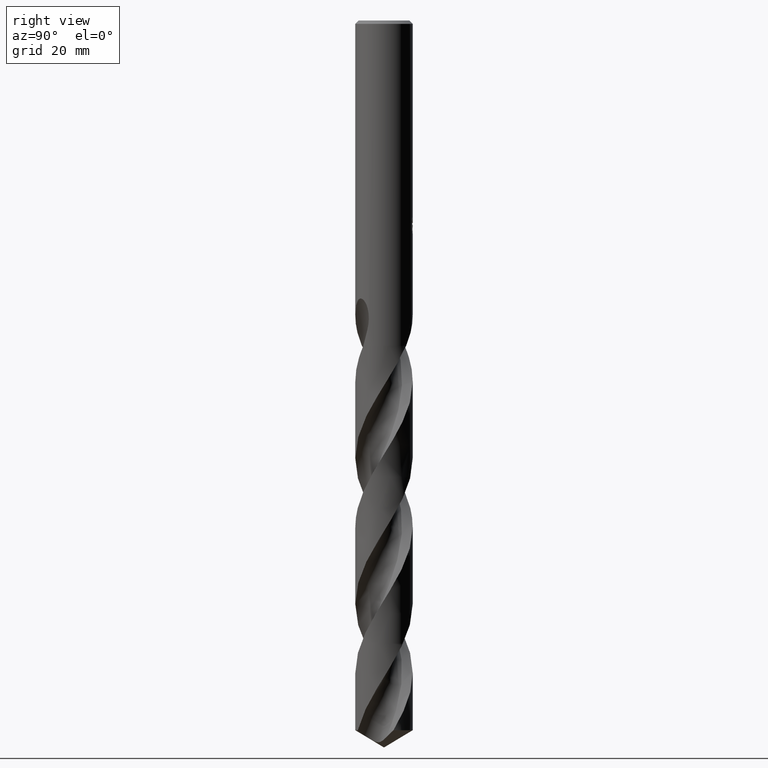
[diagram: clean part render]
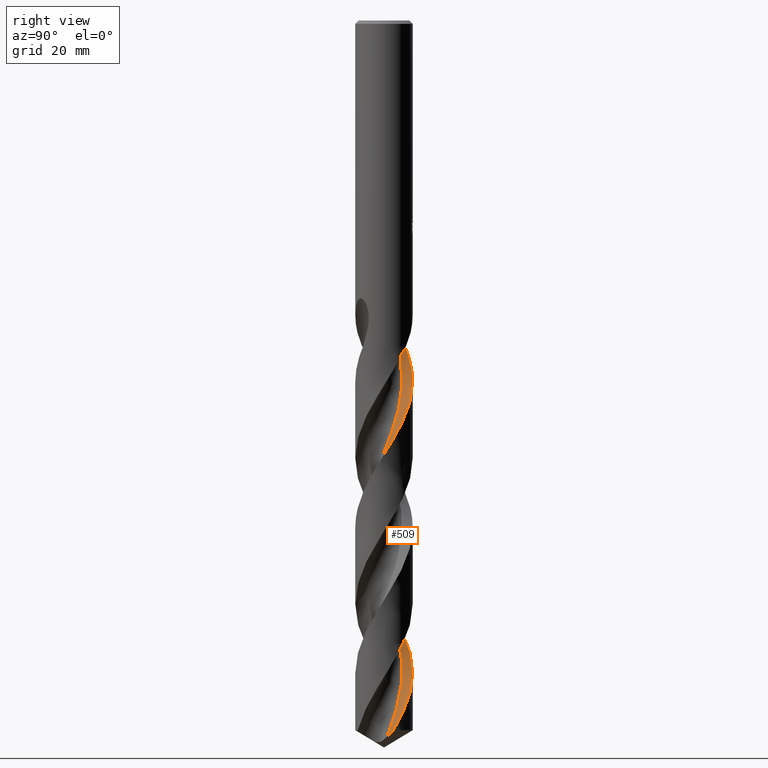
[diagram: same view with one face highlighted and labeled with its STEP entity id]
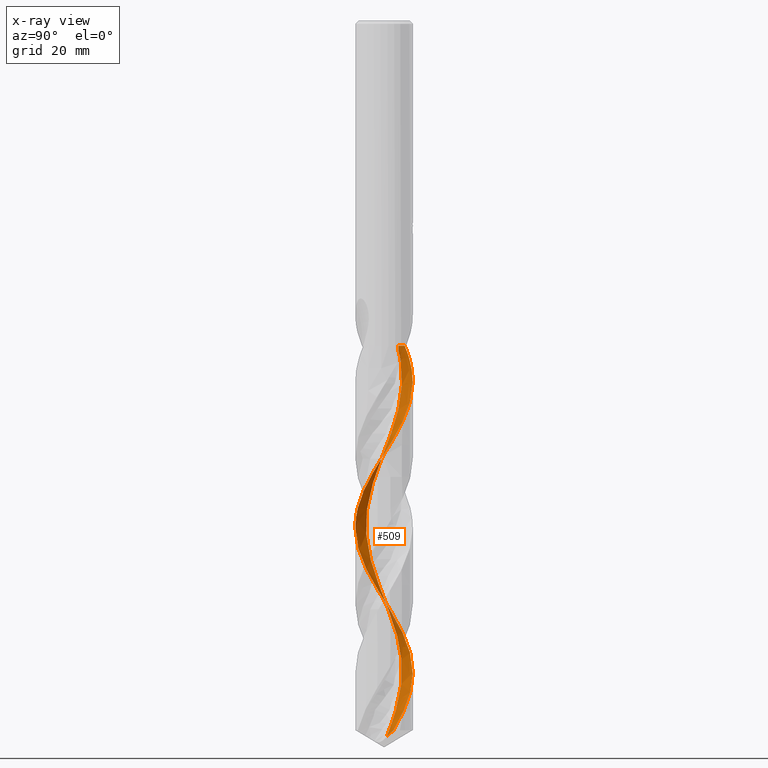
[diagram: x-ray of the same camera — body ghosted, the highlighted face saturated]
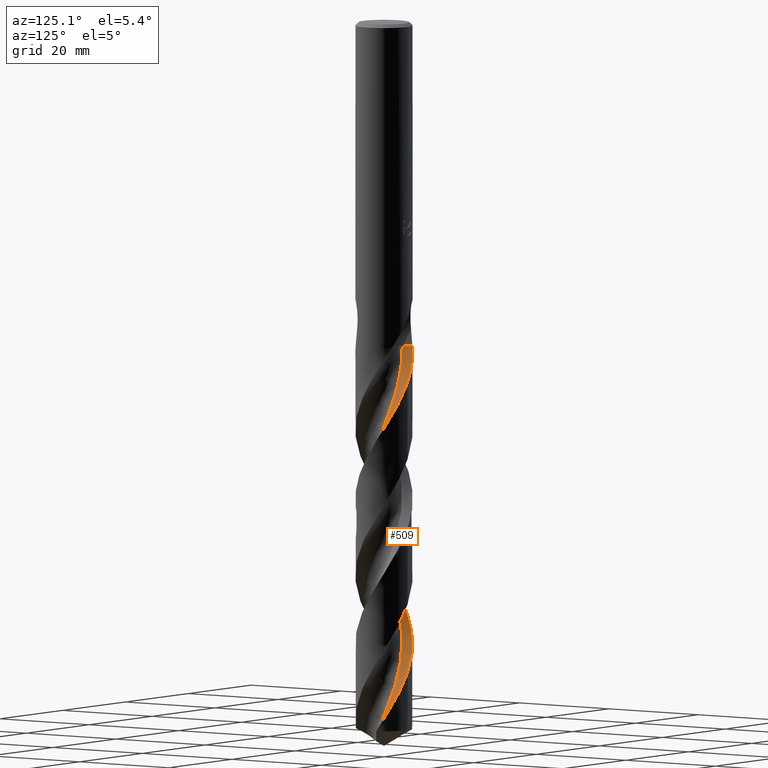
[diagram: same view with one face highlighted and labeled with its STEP entity id]
A machine part, right view. The second image highlights one B-rep face of the part: STEP entity #509.
The next image is the same camera in x-ray: the body ghosted, the highlighted face saturated — about 0% of this face is hidden behind the body in this view.
A second angle (auxiliary view) of the same face is appended — the face is thin or edge-on in the first view.
In plain terms, the highlighted face is a freeform B-spline surface patch.
Its self-contained STEP definition (entity closure, byte-faithful):
#325=EDGE_CURVE('',#705,#347,#809,.T.);
#347=VERTEX_POINT('',#831);
#367=EDGE_CURVE('',#649,#391,#852,.T.);
#379=VERTEX_POINT('',#864);
#383=EDGE_CURVE('',#379,#641,#869,.T.);
#391=VERTEX_POINT('',#879);
#417=VERTEX_POINT('',#906);
#431=EDGE_CURVE('',#391,#705,#921,.T.);
#509=ADVANCED_FACE('',(#1005),#1006,.F.);
#625=EDGE_CURVE('',#649,#641,#1132,.T.);
#641=VERTEX_POINT('',#1149);
#643=EDGE_CURVE('',#347,#417,#1151,.T.);
#649=VERTEX_POINT('',#1157);
#671=EDGE_CURVE('',#417,#379,#1181,.T.);
#705=VERTEX_POINT('',#1221);
#809=B_SPLINE_CURVE_WITH_KNOTS('',3,(#2693,#2694,#2695,#2696,#2697,#2698,#2699,#2700,#2701,#2702,#2703,#2704,#2705,#2706,#2707,#2708,#2709,#2710,#2711,#2712,#2713,#2714,#2715,#2716,#2717,#2718,#2719,#2720,#2721,#2722,#2723,#2724,#2725,#2726,#2727,#2728,#2729,#2730,#2731,#2732,#2733,#2734,#2735,#2736,#2737,#2738,#2739,#2740,#2741,#2742,#2743,#2744,#2745,#2746,#2747,#2748,#2749,#2750,#2751,#2752,#2753,#2754,#2755,#2756,#2757,#2758,#2759,#2760,#2761,#2762,#2763,#2764,#2765,#2766,#2767,#2768,#2769,#2770,#2771,#2772,#2773,#2774,#2775,#2776,#2777,#2778,#2779,#2780,#2781,#2782,#2783,#2784,#2785,#2786,#2787,#2788,#2789,#2790,#2791,#2792,#2793,#2794,#2795,#2796,#2797,#2798,#2799,#2800,#2801,#2802,#2803,#2804,#2805,#2806,#2807,#2808,#2809,#2810,#2811,#2812,#2813,#2814,#2815,#2816,#2817,#2818,#2819,#2820,#2821,#2822,#2823,#2824,#2825,#2826,#2827,#2828,#2829,#2830,#2831,#2832,#2833,#2834,#2835,#2836,#2837,#2838,#2839,#2840),.UNSPECIFIED.,.F.,.F.,(4,2,2,2,2,2,2,2,2,2,2,2,2,2,2,2,2,2,2,2,2,2,2,2,2,2,2,2,2,2,2,2,2,2,2,2,2,2,2,2,2,2,2,2,2,2,2,2,2,2,2,2,2,2,2,2,2,2,2,2,2,2,2,2,2,2,2,2,2,2,2,2,2,4),(0.0,0.245147492350784,0.376889563748349,0.429010034472494,0.458770826700931,0.517518868078697,1.13684324398078,1.32619263191585,1.44567415142591,1.55045587907758,1.67996683664826,1.93237417580481,2.11727051349631,2.71182735861656,3.17343693970352,3.59629396547802,3.81506967059455,4.36527250209018,4.88208272639986,5.84733682880121,13.097090466771,13.4061841145567,15.8309910719735,15.9028919028873,18.0556841782887,18.9835972789543,20.738301117133,21.4677211592842,22.9192539840228,24.6943162709779,25.5869800362734,27.3570527696907,28.2502196715485,30.0167057979309,30.9102679331123,32.6745131873423,33.5687432759074,34.452822286674,35.7526562304774,37.5416115486418,39.3068787109542,39.6122515088299,40.841124746022,41.7367754103061,42.4378587628425,43.9148414787327,45.6864534087381,46.5795036774108,48.3457725358439,49.2391963423722,51.0022894270908,51.8960873359575,52.7809623802634,54.1060077480068,55.8931193529472,57.6584212542617,57.9613974487316,59.2013447932664,60.9927647341399,62.7519317456917,63.416598469248,64.9406884877136,66.705756428117,67.5994826721267,69.1707094027278,70.5599354223589,71.162037427199,73.4216710078864,73.5285564582423,75.2213175494584,76.5000051122959,78.4157021036198,78.8959728775394,80.3378554729514),.UNSPECIFIED.);
#831=CARTESIAN_POINT('',(4.42862742045497E-014,-5.24994720383184,-92.7057629186425));
#852=LINE('',#3260,#3261);
#864=CARTESIAN_POINT('',(4.95586829521979,1.73259038449235,-129.845481750105));
#869=B_SPLINE_CURVE_WITH_KNOTS('',3,(#3325,#3326,#3327,#3328,#3329,#3330,#3331,#3332,#3333,#3334,#3335,#3336),.UNSPECIFIED.,.F.,.F.,(4,2,2,2,2,4),(0.0,2.62996447926799,3.90652589053346,4.5356319282758,4.69145414486911,5.15651671451737),.UNSPECIFIED.);
#879=CARTESIAN_POINT('',(-3.64908533301686,3.77433786471103,-59.505));
#906=CARTESIAN_POINT('',(-7.64599001913645E-013,5.2499851062217,-119.368381650095));
#921=B_SPLINE_CURVE_WITH_KNOTS('',3,(#3573,#3574,#3575,#3576,#3577,#3578,#3579,#3580,#3581,#3582,#3583,#3584,#3585,#3586,#3587,#3588,#3589,#3590,#3591,#3592,#3593,#3594,#3595,#3596,#3597,#3598,#3599,#3600,#3601,#3602,#3603,#3604,#3605,#3606,#3607,#3608,#3609,#3610,#3611,#3612,#3613,#3614,#3615,#3616,#3617,#3618,#3619,#3620,#3621,#3622,#3623,#3624,#3625,#3626,#3627,#3628,#3629,#3630,#3631,#3632,#3633,#3634,#3635,#3636,#3637,#3638,#3639,#3640,#3641,#3642,#3643,#3644,#3645,#3646,#3647,#3648,#3649,#3650,#3651,#3652,#3653,#3654,#3655,#3656,#3657,#3658,#3659,#3660,#3661,#3662,#3663,#3664,#3665,#3666,#3667,#3668,#3669,#3670,#3671,#3672,#3673,#3674,#3675,#3676,#3677,#3678,#3679,#3680,#3681,#3682,#3683,#3684,#3685,#3686,#3687,#3688,#3689,#3690,#3691,#3692,#3693,#3694,#3695,#3696,#3697,#3698,#3699,#3700,#3701,#3702,#3703,#3704,#3705,#3706,#3707,#3708,#3709,#3710,#3711,#3712,#3713,#3714,#3715,#3716,#3717,#3718,#3719,#3720),.UNSPECIFIED.,.F.,.F.,(4,2,2,2,2,2,2,2,2,2,2,2,2,2,2,2,2,2,2,2,2,2,2,2,2,2,2,2,2,2,2,2,2,2,2,2,2,2,2,2,2,2,2,2,2,2,2,2,2,2,2,2,2,2,2,2,2,2,2,2,2,2,2,2,2,2,2,2,2,2,2,2,2,4),(0.0,0.245147492350784,0.376889563748349,0.429010034472494,0.458770826700931,0.517518868078697,1.13684324398078,1.32619263191585,1.44567415142591,1.55045587907758,1.67996683664826,1.93237417580481,2.11727051349631,2.71182735861656,3.17343693970352,3.59629396547802,3.81506967059455,4.36527250209018,4.88208272639986,5.84733682880121,13.097090466771,13.4061841145567,15.8309910719735,15.9028919028873,18.0556841782887,18.9835972789543,20.738301117133,21.4677211592842,22.9192539840228,24.6943162709779,25.5869800362734,27.3570527696907,28.2502196715485,30.0167057979309,30.9102679331123,32.6745131873423,33.5687432759074,34.452822286674,35.7526562304774,37.5416115486418,39.3068787109542,39.6122515088299,40.841124746022,41.7367754103061,42.4378587628425,43.9148414787327,45.6864534087381,46.5795036774108,48.3457725358439,49.2391963423722,51.0022894270908,51.8960873359575,52.7809623802634,54.1060077480068,55.8931193529472,57.6584212542617,57.9613974487316,59.2013447932664,60.9927647341399,62.7519317456917,63.416598469248,64.9406884877136,66.705756428117,67.5994826721267,69.1707094027278,70.5599354223589,71.162037427199,73.4216710078864,73.5285564582423,75.2213175494584,76.5000051122959,78.4157021036198,78.8959728775394,80.3378554729514),.UNSPECIFIED.);
#1005=FACE_OUTER_BOUND('',#3927,.T.);
#1006=B_SPLINE_SURFACE_WITH_KNOTS('',3,3,((#3928,#3929,#3930,#3931,#3932,#3933,#3934,#3935,#3936,#3937,#3938,#3939,#3940,#3941,#3942,#3943,#3944,#3945,#3946,#3947,#3948,#3949,#3950,#3951,#3952,#3953,#3954,#3955,#3956,#3957,#3958,#3959,#3960,#3961,#3962,#3963,#3964,#3965,#3966,#3967,#3968,#3969,#3970,#3971,#3972,#3973,#3974,#3975,#3976,#3977,#3978,#3979,#3980,#3981,#3982,#3983,#3984,#3985,#3986,#3987,#3988,#3989,#3990,#3991,#3992,#3993,#3994,#3995,#3996,#3997,#3998,#3999,#4000,#4001,#4002,#4003,#4004,#4005),(#4006,#4007,#4008,#4009,#4010,#4011,#4012,#4013,#4014,#4015,#4016,#4017,#4018,#4019,#4020,#4021,#4022,#4023,#4024,#4025,#4026,#4027,#4028,#4029,#4030,#4031,#4032,#4033,#4034,#4035,#4036,#4037,#4038,#4039,#4040,#4041,#4042,#4043,#4044,#4045,#4046,#4047,#4048,#4049,#4050,#4051,#4052,#4053,#4054,#4055,#4056,#4057,#4058,#4059,#4060,#4061,#4062,#4063,#4064,#4065,#4066,#4067,#4068,#4069,#4070,#4071,#4072,#4073,#4074,#4075,#4076,#4077,#4078,#4079,#4080,#4081,#4082,#4083),(#4084,#4085,#4086,#4087,#4088,#4089,#4090,#4091,#4092,#4093,#4094,#4095,#4096,#4097,#4098,#4099,#4100,#4101,#4102,#4103,#4104,#4105,#4106,#4107,#4108,#4109,#4110,#4111,#4112,#4113,#4114,#4115,#4116,#4117,#4118,#4119,#4120,#4121,#4122,#4123,#4124,#4125,#4126,#4127,#4128,#4129,#4130,#4131,#4132,#4133,#4134,#4135,#4136,#4137,#4138,#4139,#4140,#4141,#4142,#4143,#4144,#4145,#4146,#4147,#4148,#4149,#4150,#4151,#4152,#4153,#4154,#4155,#4156,#4157,#4158,#4159,#4160,#4161),(#4162,#4163,#4164,#4165,#4166,#4167,#4168,#4169,#4170,#4171,#4172,#4173,#4174,#4175,#4176,#4177,#4178,#4179,#4180,#4181,#4182,#4183,#4184,#4185,#4186,#4187,#4188,#4189,#4190,#4191,#4192,#4193,#4194,#4195,#4196,#4197,#4198,#4199,#4200,#4201,#4202,#4203,#4204,#4205,#4206,#4207,#4208,#4209,#4210,#4211,#4212,#4213,#4214,#4215,#4216,#4217,#4218,#4219,#4220,#4221,#4222,#4223,#4224,#4225,#4226,#4227,#4228,#4229,#4230,#4231,#4232,#4233,#4234,#4235,#4236,#4237,#4238,#4239)),.UNSPECIFIED.,.F.,.F.,.F.,(4,4),(4,1,2,2,2,2,2,2,2,2,1,2,2,2,2,2,2,2,2,2,2,2,2,2,2,2,2,2,2,2,2,2,2,2,2,1,2,2,1,2,4),(-5.3145557616166E-016,7.0),(0.0,0.759110627272239,1.51822125454448,2.27733188181672,3.03644250908895,4.55466376363343,6.07288501817791,7.59110627272239,9.10932752726686,12.1457700363558,13.6639912909003,15.1822125454448,18.2186550545337,21.2550975636227,24.2915400727116,27.3279825818006,30.3644250908895,33.4008675999785,36.4373101090675,39.4737526181564,42.5101951272454,45.5466376363343,48.5830801454233,51.6195226545122,54.6559651636012,57.6924076726901,60.7288501817791,63.765292690868,66.801735199957,69.838177709046,72.8746202181349,75.9110627272239,78.9475052363128,81.9839477454018,85.0203902544907,86.5386115090352,88.0568327635797,91.0932752726686,92.6114965272131,94.1297177817576,97.1661602908465),.UNSPECIFIED.);
#1132=B_SPLINE_CURVE_WITH_KNOTS('',3,(#4735,#4736,#4737,#4738,#4739,#4740,#4741,#4742,#4743,#4744,#4745,#4746,#4747,#4748,#4749,#4750,#4751,#4752,#4753,#4754,#4755,#4756,#4757,#4758,#4759,#4760,#4761,#4762,#4763,#4764,#4765,#4766,#4767,#4768,#4769,#4770,#4771,#4772,#4773,#4774,#4775,#4776,#4777,#4778,#4779,#4780,#4781,#4782,#4783,#4784,#4785,#4786,#4787,#4788,#4789,#4790,#4791,#4792,#4793,#4794,#4795,#4796,#4797,#4798,#4799,#4800,#4801,#4802,#4803,#4804,#4805),.UNSPECIFIED.,.F.,.F.,(4,1,2,2,2,2,2,2,2,2,2,2,2,2,2,2,2,2,2,2,2,2,2,2,2,2,2,2,2,2,2,2,2,2,2,4),(0.0,1.13866594090836,2.27733188181672,3.03644250908895,4.55466376363343,6.07288501817791,9.10932752726686,12.1457700363558,15.1822125454448,18.2186550545337,21.2550975636227,24.2915400727116,27.3279825818006,30.3644250908895,33.4008675999785,36.4373101090675,39.4737526181564,42.5101951272454,45.5466376363343,48.5830801454233,51.6195226545122,54.6559651636012,57.6924076726901,60.7288501817791,63.765292690868,66.801735199957,69.838177709046,72.8746202181349,75.9110627272239,78.9475052363128,81.9839477454018,85.0203902544907,88.0568327635797,91.0932752726686,94.1297177817576,97.1661602908465),.UNSPECIFIED.);
#1149=CARTESIAN_POINT('',(3.26912077432507,0.51899304008181,-131.011114645056));
#1151=B_SPLINE_CURVE_WITH_KNOTS('',3,(#5271,#5272,#5273,#5274,#5275,#5276,#5277,#5278,#5279,#5280,#5281,#5282,#5283,#5284,#5285,#5286,#5287,#5288,#5289,#5290,#5291,#5292,#5293,#5294,#5295,#5296,#5297,#5298,#5299,#5300,#5301,#5302,#5303,#5304,#5305,#5306,#5307,#5308,#5309,#5310,#5311,#5312,#5313,#5314,#5315,#5316,#5317,#5318,#5319,#5320,#5321,#5322,#5323,#5324,#5325,#5326,#5327,#5328,#5329,#5330,#5331,#5332,#5333,#5334,#5335,#5336,#5337,#5338,#5339,#5340,#5341,#5342,#5343,#5344,#5345,#5346,#5347,#5348,#5349,#5350,#5351,#5352,#5353,#5354,#5355,#5356,#5357,#5358,#5359,#5360,#5361,#5362,#5363,#5364,#5365,#5366,#5367,#5368,#5369,#5370,#5371,#5372,#5373,#5374,#5375,#5376,#5377,#5378,#5379,#5380,#5381,#5382,#5383,#5384,#5385,#5386,#5387,#5388,#5389,#5390,#5391,#5392,#5393,#5394,#5395,#5396,#5397,#5398,#5399,#5400,#5401,#5402,#5403,#5404,#5405,#5406,#5407,#5408,#5409,#5410,#5411,#5412,#5413,#5414,#5415,#5416,#5417,#5418),.UNSPECIFIED.,.F.,.F.,(4,2,2,2,2,2,2,2,2,2,2,2,2,2,2,2,2,2,2,2,2,2,2,2,2,2,2,2,2,2,2,2,2,2,2,2,2,2,2,2,2,2,2,2,2,2,2,2,2,2,2,2,2,2,2,2,2,2,2,2,2,2,2,2,2,2,2,2,2,2,2,2,2,4),(0.0,0.245147492350784,0.376889563748349,0.429010034472494,0.458770826700931,0.517518868078697,1.13684324398078,1.32619263191585,1.44567415142591,1.55045587907758,1.67996683664826,1.93237417580481,2.11727051349631,2.71182735861656,3.17343693970352,3.59629396547802,3.81506967059455,4.36527250209018,4.88208272639986,5.84733682880121,13.097090466771,13.4061841145567,15.8309910719735,15.9028919028873,18.0556841782887,18.9835972789543,20.738301117133,21.4677211592842,22.9192539840228,24.6943162709779,25.5869800362734,27.3570527696907,28.2502196715485,30.0167057979309,30.9102679331123,32.6745131873423,33.5687432759074,34.452822286674,35.7526562304774,37.5416115486418,39.3068787109542,39.6122515088299,40.841124746022,41.7367754103061,42.4378587628425,43.9148414787327,45.6864534087381,46.5795036774108,48.3457725358439,49.2391963423722,51.0022894270908,51.8960873359575,52.7809623802634,54.1060077480068,55.8931193529472,57.6584212542617,57.9613974487316,59.2013447932664,60.9927647341399,62.7519317456917,63.416598469248,64.9406884877136,66.705756428117,67.5994826721267,69.1707094027278,70.5599354223589,71.162037427199,73.4216710078864,73.5285564582423,75.2213175494584,76.5000051122959,78.4157021036198,78.8959728775394,80.3378554729514),.UNSPECIFIED.);
#1157=CARTESIAN_POINT('',(-2.47487373408221,2.60012626591779,-59.505));
#1181=B_SPLINE_CURVE_WITH_KNOTS('',3,(#5478,#5479,#5480,#5481,#5482,#5483,#5484,#5485,#5486,#5487,#5488,#5489,#5490,#5491,#5492,#5493,#5494,#5495,#5496,#5497,#5498,#5499,#5500,#5501,#5502,#5503,#5504,#5505,#5506,#5507,#5508,#5509,#5510,#5511,#5512,#5513,#5514,#5515,#5516,#5517,#5518,#5519,#5520,#5521,#5522,#5523,#5524,#5525,#5526,#5527,#5528,#5529,#5530,#5531,#5532,#5533,#5534,#5535,#5536,#5537,#5538,#5539,#5540,#5541,#5542,#5543,#5544,#5545,#5546,#5547,#5548,#5549,#5550,#5551,#5552,#5553,#5554,#5555,#5556,#5557,#5558,#5559,#5560,#5561,#5562,#5563,#5564,#5565,#5566,#5567,#5568,#5569,#5570,#5571,#5572,#5573,#5574,#5575,#5576,#5577,#5578,#5579,#5580,#5581,#5582,#5583,#5584,#5585,#5586,#5587,#5588,#5589,#5590,#5591,#5592,#5593,#5594,#5595,#5596,#5597,#5598,#5599,#5600,#5601,#5602,#5603,#5604,#5605,#5606,#5607,#5608,#5609,#5610,#5611,#5612,#5613,#5614,#5615,#5616,#5617,#5618,#5619,#5620,#5621,#5622,#5623,#5624,#5625),.UNSPECIFIED.,.F.,.F.,(4,2,2,2,2,2,2,2,2,2,2,2,2,2,2,2,2,2,2,2,2,2,2,2,2,2,2,2,2,2,2,2,2,2,2,2,2,2,2,2,2,2,2,2,2,2,2,2,2,2,2,2,2,2,2,2,2,2,2,2,2,2,2,2,2,2,2,2,2,2,2,2,2,4),(0.0,0.245147492350784,0.376889563748349,0.429010034472494,0.458770826700931,0.517518868078697,1.13684324398078,1.32619263191585,1.44567415142591,1.55045587907758,1.67996683664826,1.93237417580481,2.11727051349631,2.71182735861656,3.17343693970352,3.59629396547802,3.81506967059455,4.36527250209018,4.88208272639986,5.84733682880121,13.097090466771,13.4061841145567,15.8309910719735,15.9028919028873,18.0556841782887,18.9835972789543,20.738301117133,21.4677211592842,22.9192539840228,24.6943162709779,25.5869800362734,27.3570527696907,28.2502196715485,30.0167057979309,30.9102679331123,32.6745131873423,33.5687432759074,34.452822286674,35.7526562304774,37.5416115486418,39.3068787109542,39.6122515088299,40.841124746022,41.7367754103061,42.4378587628425,43.9148414787327,45.6864534087381,46.5795036774108,48.3457725358439,49.2391963423722,51.0022894270908,51.8960873359575,52.7809623802634,54.1060077480068,55.8931193529472,57.6584212542617,57.9613974487316,59.2013447932664,60.9927647341399,62.7519317456917,63.416598469248,64.9406884877136,66.705756428117,67.5994826721267,69.1707094027278,70.5599354223589,71.162037427199,73.4216710078864,73.5285564582423,75.2213175494584,76.5000051122959,78.4157021036198,78.8959728775394,80.3378554729514),.UNSPECIFIED.);
#1221=CARTESIAN_POINT('',(-2.09382395331309E-011,5.24990930141659,-66.0431262937482));
#2693=CARTESIAN_POINT('',(-3.64908533301686,3.77433786471103,-59.505));
#2694=CARTESIAN_POINT('',(-3.619700666183,3.8027475324945,-59.575759516195));
#2695=CARTESIAN_POINT('',(-3.58989777993403,3.83089883711653,-59.6465355896407));
#2696=CARTESIAN_POINT('',(-3.54330824567799,3.87387549966668,-59.7552437848808));
#2697=CARTESIAN_POINT('',(-3.52689310513402,3.88882709345668,-59.7931902271572));
#2698=CARTESIAN_POINT('',(-3.50376360843138,3.90962574982132,-59.8461229682767));
#2699=CARTESIAN_POINT('',(-3.49718456487349,3.91551193002372,-59.8611199753687));
#2700=CARTESIAN_POINT('',(-3.48681066157065,3.92474618844107,-59.8846720107591));
#2701=CARTESIAN_POINT('',(-3.48303257778124,3.92809947703469,-59.8932297295213));
#2702=CARTESIAN_POINT('',(-3.47177296872702,3.93806403104574,-59.9186745094425));
#2703=CARTESIAN_POINT('',(-3.46427015381522,3.94466589694807,-59.9355520309562));
#2704=CARTESIAN_POINT('',(-3.37730276240888,4.02074919161095,-60.1302730445501));
#2705=CARTESIAN_POINT('',(-3.29596075003773,4.08778224823642,-60.3035454857571));
#2706=CARTESIAN_POINT('',(-3.18344035971806,4.17471932003641,-60.53228153953));
#2707=CARTESIAN_POINT('',(-3.15682047409224,4.19488698599391,-60.5856645653623));
#2708=CARTESIAN_POINT('',(-3.11287813601717,4.22751766589417,-60.6727248174097));
#2709=CARTESIAN_POINT('',(-3.09570755789369,4.24010848001984,-60.7064940429246));
#2710=CARTESIAN_POINT('',(-3.06319791302454,4.26364153330784,-60.770005790732));
#2711=CARTESIAN_POINT('',(-3.04793332985047,4.27456724121637,-60.7996540961699));
#2712=CARTESIAN_POINT('',(-3.01362724940816,4.29884413551715,-60.865940113781));
#2713=CARTESIAN_POINT('',(-2.99455952202301,4.31214862893762,-60.9025470810745));
#2714=CARTESIAN_POINT('',(-2.93801829250426,4.3510433435158,-61.0105127827214));
#2715=CARTESIAN_POINT('',(-2.90034281818088,4.37624707692396,-61.0817042133939));
#2716=CARTESIAN_POINT('',(-2.83453088742377,4.41905102138553,-61.2052984942887));
#2717=CARTESIAN_POINT('',(-2.80624502951823,4.43707266439151,-61.2581870734191));
#2718=CARTESIAN_POINT('',(-2.68499852677577,4.51266449032286,-61.4848464771938));
#2719=CARTESIAN_POINT('',(-2.59124456232028,4.56711066562857,-61.6593289759986));
#2720=CARTESIAN_POINT('',(-2.4231877449866,4.65796305354934,-61.9683997689162));
#2721=CARTESIAN_POINT('',(-2.34890864040342,4.69585414653686,-62.1037954824927));
#2722=CARTESIAN_POINT('',(-2.20515154535314,4.76493587833228,-62.3630075748191));
#2723=CARTESIAN_POINT('',(-2.13568190963065,4.79647587148351,-62.4870459007969));
#2724=CARTESIAN_POINT('',(-2.02922787460484,4.84203370777043,-62.6750678268809));
#2725=CARTESIAN_POINT('',(-1.99273171634864,4.8571680883205,-62.7391711599215));
#2726=CARTESIAN_POINT('',(-1.8637687001424,4.90894639682153,-62.9643934144366));
#2727=CARTESIAN_POINT('',(-1.77046052448951,4.94336866271894,-63.1249706038748));
#2728=CARTESIAN_POINT('',(-1.5874144128131,5.00503513996437,-63.4368278946389));
#2729=CARTESIAN_POINT('',(-1.49795707932719,5.03253359310788,-63.587758210707));
#2730=CARTESIAN_POINT('',(-1.23940242743271,5.10450318670584,-64.0208648223425));
#2731=CARTESIAN_POINT('',(-1.06890300145528,5.14290083342412,-64.3029233942351));
#2732=CARTESIAN_POINT('',(0.394637974426224,5.39667920095124,-66.7047553312827));
#2733=CARTESIAN_POINT('',(1.72476776437505,5.12901365345788,-68.7545255803114));
#2734=CARTESIAN_POINT('',(2.87658338479561,4.39204003960586,-70.9639946155896));
#2735=CARTESIAN_POINT('',(2.9231918777615,4.36115778568339,-71.0543211177516));
#2736=CARTESIAN_POINT('',(3.33098818084601,4.08148303224506,-71.8535622594469));
#2737=CARTESIAN_POINT('',(3.66022587272347,3.78903753789445,-72.5602542654758));
#2738=CARTESIAN_POINT('',(3.95781423981396,3.44927984753727,-73.2901690192603));
#2739=CARTESIAN_POINT('',(3.96634731508309,3.43946424637927,-73.3111883426974));
#2740=CARTESIAN_POINT('',(4.22924748724779,3.13477062327447,-73.9616275841729));
#2741=CARTESIAN_POINT('',(4.45009180771826,2.8124834945565,-74.5898738400548));
#2742=CARTESIAN_POINT('',(4.71219539983897,2.32057918301108,-75.4906341548094));
#2743=CARTESIAN_POINT('',(4.78397238038549,2.16874715754603,-75.7617036349404));
#2744=CARTESIAN_POINT('',(4.97007430985527,1.72069070243459,-76.5462121503266));
#2745=CARTESIAN_POINT('',(5.06500796194196,1.41711211064405,-77.0584485106948));
#2746=CARTESIAN_POINT('',(5.1597633735307,0.977743990859808,-77.7848014945503));
#2747=CARTESIAN_POINT('',(5.18270622559823,0.847755115722273,-77.9979396667843));
#2748=CARTESIAN_POINT('',(5.23658677085001,0.45697335484414,-78.6357642606699));
#2749=CARTESIAN_POINT('',(5.25289085450014,0.194529936473036,-79.0598957660292));
#2750=CARTESIAN_POINT('',(5.24532512228228,-0.389166285628773,-80.0034693672186));
#2751=CARTESIAN_POINT('',(5.21170827385649,-0.709174691698395,-80.5212997520759));
#2752=CARTESIAN_POINT('',(5.11759465914212,-1.18239850983233,-81.3015318450583));
#2753=CARTESIAN_POINT('',(5.0788095810214,-1.33923738930304,-81.5624713248111));
#2754=CARTESIAN_POINT('',(4.94170819055616,-1.80107540348513,-82.341140623121));
#2755=CARTESIAN_POINT('',(4.8226819484487,-2.09905454145584,-82.8575673455841));
#2756=CARTESIAN_POINT('',(4.60392268682849,-2.52820138362034,-83.6364885806304));
#2757=CARTESIAN_POINT('',(4.52394113473705,-2.66868606212893,-83.8975715090813));
#2758=CARTESIAN_POINT('',(4.26681024591056,-3.07543587777204,-84.6753393210899));
#2759=CARTESIAN_POINT('',(4.07174385453757,-3.32938609852609,-85.1907722391682));
#2760=CARTESIAN_POINT('',(3.74513954284024,-3.6826476541844,-85.9687679168764));
#2761=CARTESIAN_POINT('',(3.62998590113803,-3.79620722440078,-86.2299656242381));
#2762=CARTESIAN_POINT('',(3.27236611359705,-4.11769019731259,-87.0071976232486));
#2763=CARTESIAN_POINT('',(3.01604461223457,-4.30896398239216,-87.5220240393));
#2764=CARTESIAN_POINT('',(2.60610768341821,-4.56028980238508,-88.2995514021811));
#2765=CARTESIAN_POINT('',(2.4643593506661,-4.6384260715451,-88.5609351307834));
#2766=CARTESIAN_POINT('',(2.1756924781399,-4.78056925865082,-89.0809660827754));
#2767=CARTESIAN_POINT('',(2.02904665395642,-4.84463035209662,-89.3392237209994));
#2768=CARTESIAN_POINT('',(1.6601642185923,-4.98608582056018,-89.9779289320121));
#2769=CARTESIAN_POINT('',(1.43519460383008,-5.05543496040854,-90.3578828745804));
#2770=CARTESIAN_POINT('',(0.891360493331778,-5.18383456884871,-91.2612497459509));
#2771=CARTESIAN_POINT('',(0.570217529274673,-5.2289080594659,-91.7829231543584));
#2772=CARTESIAN_POINT('',(-0.0719201794608568,-5.25915547079049,-92.8225029975369));
#2773=CARTESIAN_POINT('',(-0.391639669390282,-5.24505680895794,-93.3377247888936));
#2774=CARTESIAN_POINT('',(-0.762925134937081,-5.19451279362426,-93.9432472122605));
#2775=CARTESIAN_POINT('',(-0.817552579858529,-5.18619570727765,-94.0325305108417));
#2776=CARTESIAN_POINT('',(-1.09128780216318,-5.1400873766796,-94.4812558421168));
#2777=CARTESIAN_POINT('',(-1.3079609441886,-5.0892673746491,-94.8405300308187));
#2778=CARTESIAN_POINT('',(-1.67584015279485,-4.97793153353187,-95.4619386832084));
#2779=CARTESIAN_POINT('',(-1.82869873948018,-4.9238323331482,-95.7237298919313));
#2780=CARTESIAN_POINT('',(-2.09635447980833,-4.81491367414674,-96.1907023343936));
#2781=CARTESIAN_POINT('',(-2.21207712418368,-4.76285649483689,-96.395616561821));
#2782=CARTESIAN_POINT('',(-2.56533395206781,-4.58829681919407,-97.0327246024517));
#2783=CARTESIAN_POINT('',(-2.79553204316224,-4.45179180375809,-97.4643501325476));
#2784=CARTESIAN_POINT('',(-3.2768310129802,-4.11426589257419,-98.4145373169438));
#2785=CARTESIAN_POINT('',(-3.52185761332221,-3.90656741318158,-98.9315079941299));
#2786=CARTESIAN_POINT('',(-3.85955247337949,-3.5625839615212,-99.710994497087));
#2787=CARTESIAN_POINT('',(-3.96736792776244,-3.44211622984347,-99.9720927770532));
#2788=CARTESIAN_POINT('',(-4.27141273209112,-3.0690821280601,-100.749910153691));
#2789=CARTESIAN_POINT('',(-4.4502720921516,-2.80343478673307,-101.265372208914));
#2790=CARTESIAN_POINT('',(-4.6815213702318,-2.38150469639446,-102.043408090736));
#2791=CARTESIAN_POINT('',(-4.75262833616239,-2.23623646119903,-102.304613439747));
#2792=CARTESIAN_POINT('',(-4.94381949046617,-1.79514636819621,-103.081613951627));
#2793=CARTESIAN_POINT('',(-5.04373779015659,-1.49149092268106,-103.596200014849));
#2794=CARTESIAN_POINT('',(-5.15183417635166,-1.02316576475973,-104.373423023692));
#2795=CARTESIAN_POINT('',(-5.18090753220287,-0.863993031426359,-104.634736561609));
#2796=CARTESIAN_POINT('',(-5.22405364227659,-0.545012250729909,-105.154979898548));
#2797=CARTESIAN_POINT('',(-5.23824450368088,-0.385440379965997,-105.413523922822));
#2798=CARTESIAN_POINT('',(-5.25541893812789,0.0140494077541857,-106.059956044705));
#2799=CARTESIAN_POINT('',(-5.24929661547857,0.254015755370454,-106.447330208323));
#2800=CARTESIAN_POINT('',(-5.19644514296167,0.814675071987601,-107.357689432277));
#2801=CARTESIAN_POINT('',(-5.13641875114359,1.13309076506407,-107.87892961765));
#2802=CARTESIAN_POINT('',(-4.95967083032695,1.75095331146154,-108.918179462246));
#2803=CARTESIAN_POINT('',(-4.84398468126522,2.04941369796917,-109.433502739336));
#2804=CARTESIAN_POINT('',(-4.67744699743749,2.3846805035474,-110.038452043867));
#2805=CARTESIAN_POINT('',(-4.6522870627734,2.43340023242161,-110.127054409597));
#2806=CARTESIAN_POINT('',(-4.52030401374076,2.67944218179045,-110.57840762736));
#2807=CARTESIAN_POINT('',(-4.40167483019695,2.87015975257034,-110.940982950437));
#2808=CARTESIAN_POINT('',(-4.08272723060629,3.31642065531782,-111.827804732012));
#2809=CARTESIAN_POINT('',(-3.87023677761848,3.56209980775249,-112.350265647416));
#2810=CARTESIAN_POINT('',(-3.40690743737121,4.00706081814189,-113.389042939635));
#2811=CARTESIAN_POINT('',(-3.15771588801978,4.2062443909342,-113.902707694898));
#2812=CARTESIAN_POINT('',(-2.79153682447765,4.44792874666249,-114.611710472245));
#2813=CARTESIAN_POINT('',(-2.6888971478225,4.51071742865775,-114.806043637713));
#2814=CARTESIAN_POINT('',(-2.34415920900074,4.70566185838955,-115.446410148335));
#2815=CARTESIAN_POINT('',(-2.09374492362425,4.82230461051316,-115.891836082617));
#2816=CARTESIAN_POINT('',(-1.53597377447258,5.03042294122323,-116.854066021806));
#2817=CARTESIAN_POINT('',(-1.22712865588316,5.1145350563084,-117.369311713852));
#2818=CARTESIAN_POINT('',(-0.753366996380454,5.19816452111949,-118.14723062605));
#2819=CARTESIAN_POINT('',(-0.59287419613932,5.2189078854394,-118.408568908468));
#2820=CARTESIAN_POINT('',(-0.148208800483898,5.25559322554902,-119.129671675113));
#2821=CARTESIAN_POINT('',(0.136609433397674,5.25590198553807,-119.588478449572));
#2822=CARTESIAN_POINT('',(0.670542853572033,5.21305226280372,-120.454679055128));
#2823=CARTESIAN_POINT('',(0.919390398648786,5.17497155964184,-120.860592010817));
#2824=CARTESIAN_POINT('',(1.27088650175091,5.09500754722438,-121.443125110445));
#2825=CARTESIAN_POINT('',(1.37636674259013,5.06753042627204,-121.619169164351));
#2826=CARTESIAN_POINT('',(1.87322506843286,4.92144675437212,-122.456469584755));
#2827=CARTESIAN_POINT('',(2.25081827981479,4.76062626365644,-123.115683560944));
#2828=CARTESIAN_POINT('',(2.62274287981605,4.54796702977854,-123.808024631626));
#2829=CARTESIAN_POINT('',(2.63948671002223,4.53827000821675,-123.839292114889));
#2830=CARTESIAN_POINT('',(2.92050650274453,4.37343889901729,-124.365836915853));
#2831=CARTESIAN_POINT('',(3.17076420275928,4.19554365360815,-124.860694487056));
#2832=CARTESIAN_POINT('',(3.58028922165086,3.84675856692182,-125.730162343429));
#2833=CARTESIAN_POINT('',(3.74637251892009,3.68519955976533,-126.103599814329));
#2834=CARTESIAN_POINT('',(4.13326138581358,3.2555832563755,-127.038409394564));
#2835=CARTESIAN_POINT('',(4.33923359754124,2.97553580418439,-127.597950459642));
#2836=CARTESIAN_POINT('',(4.56044066141981,2.60238711002392,-128.29904933924));
#2837=CARTESIAN_POINT('',(4.60291328060046,2.52650498832272,-128.439535810515));
#2838=CARTESIAN_POINT('',(4.76527223192447,2.21873862107149,-129.002023619696));
#2839=CARTESIAN_POINT('',(4.86969799729742,1.97906843407937,-129.423574972624));
#2840=CARTESIAN_POINT('',(4.9558682952198,1.73259038449236,-129.845481750105));
#3260=CARTESIAN_POINT('',(-2.47487373415292,2.60012626584708,-59.505));
#3261=VECTOR('',#6951,1.0);
#3325=CARTESIAN_POINT('',(6.47573994376105,3.63177534833553,-128.538837508246));
#3326=CARTESIAN_POINT('',(6.07799056494253,2.96361866188047,-128.94366556889));
#3327=CARTESIAN_POINT('',(5.59767735133298,2.35167741840681,-129.35672884388));
#3328=CARTESIAN_POINT('',(4.77708711330738,1.55851074412591,-129.982140723884));
#3329=CARTESIAN_POINT('',(4.49234718952353,1.31810406209886,-130.18811701926));
#3330=CARTESIAN_POINT('',(4.04497338876532,0.991276118903593,-130.497939570486));
#3331=CARTESIAN_POINT('',(3.89371864134602,0.888644556970101,-130.600558423526));
#3332=CARTESIAN_POINT('',(3.70083924969173,0.767569214004844,-130.729006707993));
#3333=CARTESIAN_POINT('',(3.6621710751084,0.743763124408523,-130.754642381104));
#3334=CARTESIAN_POINT('',(3.5068836410654,0.650035118871437,-130.857138116576));
#3335=CARTESIAN_POINT('',(3.38881522918724,0.582930153174942,-130.934060948809));
#3336=CARTESIAN_POINT('',(3.26912077429871,0.518993040175229,-131.011114645063));
#3573=CARTESIAN_POINT('',(-3.64908533301686,3.77433786471103,-59.505));
#3574=CARTESIAN_POINT('',(-3.619700666183,3.8027475324945,-59.575759516195));
#3575=CARTESIAN_POINT('',(-3.58989777993403,3.83089883711653,-59.6465355896407));
#3576=CARTESIAN_POINT('',(-3.54330824567799,3.87387549966668,-59.7552437848808));
#3577=CARTESIAN_POINT('',(-3.52689310513402,3.88882709345668,-59.7931902271572));
#3578=CARTESIAN_POINT('',(-3.50376360843138,3.90962574982132,-59.8461229682767));
#3579=CARTESIAN_POINT('',(-3.49718456487349,3.91551193002372,-59.8611199753687));
#3580=CARTESIAN_POINT('',(-3.48681066157065,3.92474618844107,-59.8846720107591));
#3581=CARTESIAN_POINT('',(-3.48303257778124,3.92809947703469,-59.8932297295213));
#3582=CARTESIAN_POINT('',(-3.47177296872702,3.93806403104574,-59.9186745094425));
#3583=CARTESIAN_POINT('',(-3.46427015381522,3.94466589694807,-59.9355520309562));
#3584=CARTESIAN_POINT('',(-3.37730276240888,4.02074919161095,-60.1302730445501));
#3585=CARTESIAN_POINT('',(-3.29596075003773,4.08778224823642,-60.3035454857571));
#3586=CARTESIAN_POINT('',(-3.18344035971806,4.17471932003641,-60.53228153953));
#3587=CARTESIAN_POINT('',(-3.15682047409224,4.19488698599391,-60.5856645653623));
#3588=CARTESIAN_POINT('',(-3.11287813601717,4.22751766589417,-60.6727248174097));
#3589=CARTESIAN_POINT('',(-3.09570755789369,4.24010848001984,-60.7064940429246));
#3590=CARTESIAN_POINT('',(-3.06319791302454,4.26364153330784,-60.770005790732));
#3591=CARTESIAN_POINT('',(-3.04793332985047,4.27456724121637,-60.7996540961699));
#3592=CARTESIAN_POINT('',(-3.01362724940816,4.29884413551715,-60.865940113781));
#3593=CARTESIAN_POINT('',(-2.99455952202301,4.31214862893762,-60.9025470810745));
#3594=CARTESIAN_POINT('',(-2.93801829250426,4.3510433435158,-61.0105127827214));
#3595=CARTESIAN_POINT('',(-2.90034281818088,4.37624707692396,-61.0817042133939));
#3596=CARTESIAN_POINT('',(-2.83453088742377,4.41905102138553,-61.2052984942887));
#3597=CARTESIAN_POINT('',(-2.80624502951823,4.43707266439151,-61.2581870734191));
#3598=CARTESIAN_POINT('',(-2.68499852677577,4.51266449032286,-61.4848464771938));
#3599=CARTESIAN_POINT('',(-2.59124456232028,4.56711066562857,-61.6593289759986));
#3600=CARTESIAN_POINT('',(-2.4231877449866,4.65796305354934,-61.9683997689162));
#3601=CARTESIAN_POINT('',(-2.34890864040342,4.69585414653686,-62.1037954824927));
#3602=CARTESIAN_POINT('',(-2.20515154535314,4.76493587833228,-62.3630075748191));
#3603=CARTESIAN_POINT('',(-2.13568190963065,4.79647587148351,-62.4870459007969));
#3604=CARTESIAN_POINT('',(-2.02922787460484,4.84203370777043,-62.6750678268809));
#3605=CARTESIAN_POINT('',(-1.99273171634864,4.8571680883205,-62.7391711599215));
#3606=CARTESIAN_POINT('',(-1.8637687001424,4.90894639682153,-62.9643934144366));
#3607=CARTESIAN_POINT('',(-1.77046052448951,4.94336866271894,-63.1249706038748));
#3608=CARTESIAN_POINT('',(-1.5874144128131,5.00503513996437,-63.4368278946389));
#3609=CARTESIAN_POINT('',(-1.49795707932719,5.03253359310788,-63.587758210707));
#3610=CARTESIAN_POINT('',(-1.23940242743271,5.10450318670584,-64.0208648223425));
#3611=CARTESIAN_POINT('',(-1.06890300145528,5.14290083342412,-64.3029233942351));
#3612=CARTESIAN_POINT('',(0.394637974426224,5.39667920095124,-66.7047553312827));
#3613=CARTESIAN_POINT('',(1.72476776437505,5.12901365345788,-68.7545255803114));
#3614=CARTESIAN_POINT('',(2.87658338479561,4.39204003960586,-70.9639946155896));
#3615=CARTESIAN_POINT('',(2.9231918777615,4.36115778568339,-71.0543211177516));
#3616=CARTESIAN_POINT('',(3.33098818084601,4.08148303224506,-71.8535622594469));
#3617=CARTESIAN_POINT('',(3.66022587272347,3.78903753789445,-72.5602542654758));
#3618=CARTESIAN_POINT('',(3.95781423981396,3.44927984753727,-73.2901690192603));
#3619=CARTESIAN_POINT('',(3.96634731508309,3.43946424637927,-73.3111883426974));
#3620=CARTESIAN_POINT('',(4.22924748724779,3.13477062327447,-73.9616275841729));
#3621=CARTESIAN_POINT('',(4.45009180771826,2.8124834945565,-74.5898738400548));
#3622=CARTESIAN_POINT('',(4.71219539983897,2.32057918301108,-75.4906341548094));
#3623=CARTESIAN_POINT('',(4.78397238038549,2.16874715754603,-75.7617036349404));
#3624=CARTESIAN_POINT('',(4.97007430985527,1.72069070243459,-76.5462121503266));
#3625=CARTESIAN_POINT('',(5.06500796194196,1.41711211064405,-77.0584485106948));
#3626=CARTESIAN_POINT('',(5.1597633735307,0.977743990859808,-77.7848014945503));
#3627=CARTESIAN_POINT('',(5.18270622559823,0.847755115722273,-77.9979396667843));
#3628=CARTESIAN_POINT('',(5.23658677085001,0.45697335484414,-78.6357642606699));
#3629=CARTESIAN_POINT('',(5.25289085450014,0.194529936473036,-79.0598957660292));
#3630=CARTESIAN_POINT('',(5.24532512228228,-0.389166285628773,-80.0034693672186));
#3631=CARTESIAN_POINT('',(5.21170827385649,-0.709174691698395,-80.5212997520759));
#3632=CARTESIAN_POINT('',(5.11759465914212,-1.18239850983233,-81.3015318450583));
#3633=CARTESIAN_POINT('',(5.0788095810214,-1.33923738930304,-81.5624713248111));
#3634=CARTESIAN_POINT('',(4.94170819055616,-1.80107540348513,-82.341140623121));
#3635=CARTESIAN_POINT('',(4.8226819484487,-2.09905454145584,-82.8575673455841));
#3636=CARTESIAN_POINT('',(4.60392268682849,-2.52820138362034,-83.6364885806304));
#3637=CARTESIAN_POINT('',(4.52394113473705,-2.66868606212893,-83.8975715090813));
#3638=CARTESIAN_POINT('',(4.26681024591056,-3.07543587777204,-84.6753393210899));
#3639=CARTESIAN_POINT('',(4.07174385453757,-3.32938609852609,-85.1907722391682));
#3640=CARTESIAN_POINT('',(3.74513954284024,-3.6826476541844,-85.9687679168764));
#3641=CARTESIAN_POINT('',(3.62998590113803,-3.79620722440078,-86.2299656242381));
#3642=CARTESIAN_POINT('',(3.27236611359705,-4.11769019731259,-87.0071976232486));
#3643=CARTESIAN_POINT('',(3.01604461223457,-4.30896398239216,-87.5220240393));
#3644=CARTESIAN_POINT('',(2.60610768341821,-4.56028980238508,-88.2995514021811));
#3645=CARTESIAN_POINT('',(2.4643593506661,-4.6384260715451,-88.5609351307834));
#3646=CARTESIAN_POINT('',(2.1756924781399,-4.78056925865082,-89.0809660827754));
#3647=CARTESIAN_POINT('',(2.02904665395642,-4.84463035209662,-89.3392237209994));
#3648=CARTESIAN_POINT('',(1.6601642185923,-4.98608582056018,-89.9779289320121));
#3649=CARTESIAN_POINT('',(1.43519460383008,-5.05543496040854,-90.3578828745804));
#3650=CARTESIAN_POINT('',(0.891360493331778,-5.18383456884871,-91.2612497459509));
#3651=CARTESIAN_POINT('',(0.570217529274673,-5.2289080594659,-91.7829231543584));
#3652=CARTESIAN_POINT('',(-0.0719201794608568,-5.25915547079049,-92.8225029975369));
#3653=CARTESIAN_POINT('',(-0.391639669390282,-5.24505680895794,-93.3377247888936));
#3654=CARTESIAN_POINT('',(-0.762925134937081,-5.19451279362426,-93.9432472122605));
#3655=CARTESIAN_POINT('',(-0.817552579858529,-5.18619570727765,-94.0325305108417));
#3656=CARTESIAN_POINT('',(-1.09128780216318,-5.1400873766796,-94.4812558421168));
#3657=CARTESIAN_POINT('',(-1.3079609441886,-5.0892673746491,-94.8405300308187));
#3658=CARTESIAN_POINT('',(-1.67584015279485,-4.97793153353187,-95.4619386832084));
#3659=CARTESIAN_POINT('',(-1.82869873948018,-4.9238323331482,-95.7237298919313));
#3660=CARTESIAN_POINT('',(-2.09635447980833,-4.81491367414674,-96.1907023343936));
#3661=CARTESIAN_POINT('',(-2.21207712418368,-4.76285649483689,-96.395616561821));
#3662=CARTESIAN_POINT('',(-2.56533395206781,-4.58829681919407,-97.0327246024517));
#3663=CARTESIAN_POINT('',(-2.79553204316224,-4.45179180375809,-97.4643501325476));
#3664=CARTESIAN_POINT('',(-3.2768310129802,-4.11426589257419,-98.4145373169438));
#3665=CARTESIAN_POINT('',(-3.52185761332221,-3.90656741318158,-98.9315079941299));
#3666=CARTESIAN_POINT('',(-3.85955247337949,-3.5625839615212,-99.710994497087));
#3667=CARTESIAN_POINT('',(-3.96736792776244,-3.44211622984347,-99.9720927770532));
#3668=CARTESIAN_POINT('',(-4.27141273209112,-3.0690821280601,-100.749910153691));
#3669=CARTESIAN_POINT('',(-4.4502720921516,-2.80343478673307,-101.265372208914));
#3670=CARTESIAN_POINT('',(-4.6815213702318,-2.38150469639446,-102.043408090736));
#3671=CARTESIAN_POINT('',(-4.75262833616239,-2.23623646119903,-102.304613439747));
#3672=CARTESIAN_POINT('',(-4.94381949046617,-1.79514636819621,-103.081613951627));
#3673=CARTESIAN_POINT('',(-5.04373779015659,-1.49149092268106,-103.596200014849));
#3674=CARTESIAN_POINT('',(-5.15183417635166,-1.02316576475973,-104.373423023692));
#3675=CARTESIAN_POINT('',(-5.18090753220287,-0.863993031426359,-104.634736561609));
#3676=CARTESIAN_POINT('',(-5.22405364227659,-0.545012250729909,-105.154979898548));
#3677=CARTESIAN_POINT('',(-5.23824450368088,-0.385440379965997,-105.413523922822));
#3678=CARTESIAN_POINT('',(-5.25541893812789,0.0140494077541857,-106.059956044705));
#3679=CARTESIAN_POINT('',(-5.24929661547857,0.254015755370454,-106.447330208323));
#3680=CARTESIAN_POINT('',(-5.19644514296167,0.814675071987601,-107.357689432277));
#3681=CARTESIAN_POINT('',(-5.13641875114359,1.13309076506407,-107.87892961765));
#3682=CARTESIAN_POINT('',(-4.95967083032695,1.75095331146154,-108.918179462246));
#3683=CARTESIAN_POINT('',(-4.84398468126522,2.04941369796917,-109.433502739336));
#3684=CARTESIAN_POINT('',(-4.67744699743749,2.3846805035474,-110.038452043867));
#3685=CARTESIAN_POINT('',(-4.6522870627734,2.43340023242161,-110.127054409597));
#3686=CARTESIAN_POINT('',(-4.52030401374076,2.67944218179045,-110.57840762736));
#3687=CARTESIAN_POINT('',(-4.40167483019695,2.87015975257034,-110.940982950437));
#3688=CARTESIAN_POINT('',(-4.08272723060629,3.31642065531782,-111.827804732012));
#3689=CARTESIAN_POINT('',(-3.87023677761848,3.56209980775249,-112.350265647416));
#3690=CARTESIAN_POINT('',(-3.40690743737121,4.00706081814189,-113.389042939635));
#3691=CARTESIAN_POINT('',(-3.15771588801978,4.2062443909342,-113.902707694898));
#3692=CARTESIAN_POINT('',(-2.79153682447765,4.44792874666249,-114.611710472245));
#3693=CARTESIAN_POINT('',(-2.6888971478225,4.51071742865775,-114.806043637713));
#3694=CARTESIAN_POINT('',(-2.34415920900074,4.70566185838955,-115.446410148335));
#3695=CARTESIAN_POINT('',(-2.09374492362425,4.82230461051316,-115.891836082617));
#3696=CARTESIAN_POINT('',(-1.53597377447258,5.03042294122323,-116.854066021806));
#3697=CARTESIAN_POINT('',(-1.22712865588316,5.1145350563084,-117.369311713852));
#3698=CARTESIAN_POINT('',(-0.753366996380454,5.19816452111949,-118.14723062605));
#3699=CARTESIAN_POINT('',(-0.59287419613932,5.2189078854394,-118.408568908468));
#3700=CARTESIAN_POINT('',(-0.148208800483898,5.25559322554902,-119.129671675113));
#3701=CARTESIAN_POINT('',(0.136609433397674,5.25590198553807,-119.588478449572));
#3702=CARTESIAN_POINT('',(0.670542853572033,5.21305226280372,-120.454679055128));
#3703=CARTESIAN_POINT('',(0.919390398648786,5.17497155964184,-120.860592010817));
#3704=CARTESIAN_POINT('',(1.27088650175091,5.09500754722438,-121.443125110445));
#3705=CARTESIAN_POINT('',(1.37636674259013,5.06753042627204,-121.619169164351));
#3706=CARTESIAN_POINT('',(1.87322506843286,4.92144675437212,-122.456469584755));
#3707=CARTESIAN_POINT('',(2.25081827981479,4.76062626365644,-123.115683560944));
#3708=CARTESIAN_POINT('',(2.62274287981605,4.54796702977854,-123.808024631626));
#3709=CARTESIAN_POINT('',(2.63948671002223,4.53827000821675,-123.839292114889));
#3710=CARTESIAN_POINT('',(2.92050650274453,4.37343889901729,-124.365836915853));
#3711=CARTESIAN_POINT('',(3.17076420275928,4.19554365360815,-124.860694487056));
#3712=CARTESIAN_POINT('',(3.58028922165086,3.84675856692182,-125.730162343429));
#3713=CARTESIAN_POINT('',(3.74637251892009,3.68519955976533,-126.103599814329));
#3714=CARTESIAN_POINT('',(4.13326138581358,3.2555832563755,-127.038409394564));
#3715=CARTESIAN_POINT('',(4.33923359754124,2.97553580418439,-127.597950459642));
#3716=CARTESIAN_POINT('',(4.56044066141981,2.60238711002392,-128.29904933924));
#3717=CARTESIAN_POINT('',(4.60291328060046,2.52650498832272,-128.439535810515));
#3718=CARTESIAN_POINT('',(4.76527223192447,2.21873862107149,-129.002023619696));
#3719=CARTESIAN_POINT('',(4.86969799729742,1.97906843407937,-129.423574972624));
#3720=CARTESIAN_POINT('',(4.9558682952198,1.73259038449236,-129.845481750105));
#3927=EDGE_LOOP('',(#7082,#7083,#7084,#7085,#7086,#7087,#7088));
#3928=CARTESIAN_POINT('',(-2.47487373415292,2.60012626584708,-59.505));
#3929=CARTESIAN_POINT('',(-2.30901343562321,2.59054429803299,-59.6961424397892));
#3930=CARTESIAN_POINT('',(-2.02398756332855,2.59549568982965,-60.0777816027782));
#3931=CARTESIAN_POINT('',(-1.8329356437135,2.64338897299447,-60.4584243122545));
#3932=CARTESIAN_POINT('',(-1.68714933634438,2.71456097055893,-60.8396955887444));
#3933=CARTESIAN_POINT('',(-1.63467140330118,2.76054224768929,-61.0306023588264));
#3934=CARTESIAN_POINT('',(-1.56342327480385,2.87654314248267,-61.4153328551734));
#3935=CARTESIAN_POINT('',(-1.5169900401433,2.92723624780745,-61.6078944121149));
#3936=CARTESIAN_POINT('',(-1.35112577314542,3.05509677492338,-62.1847064901567));
#3937=CARTESIAN_POINT('',(-1.21308179157909,3.11433521807716,-62.5686841138912));
#3938=CARTESIAN_POINT('',(-0.905987402696186,3.18227246276146,-63.3315855205145));
#3939=CARTESIAN_POINT('',(-0.757167456268846,3.21371444785911,-63.7134031474217));
#3940=CARTESIAN_POINT('',(-0.466836898511387,3.2730839966686,-64.4792627636356));
#3941=CARTESIAN_POINT('',(-0.319135147114613,3.2920506555809,-64.8623062760042));
#3942=CARTESIAN_POINT('',(-0.0232643541857217,3.31147028517524,-65.628650599575));
#3943=CARTESIAN_POINT('',(0.12641986387694,3.30887337718444,-66.0115979878127));
#3944=CARTESIAN_POINT('',(0.572107733019249,3.27221123244439,-67.1595434415389));
#3945=CARTESIAN_POINT('',(0.86693223619408,3.20086193233355,-67.9249757022525));
#3946=CARTESIAN_POINT('',(1.28621912432662,3.05101249529457,-69.0736488303976));
#3947=CARTESIAN_POINT('',(1.55911386566802,2.92730315217614,-69.8394844034172));
#3948=CARTESIAN_POINT('',(1.81259248811896,2.76780658830022,-70.6050364722087));
#3949=CARTESIAN_POINT('',(2.17641709877015,2.51043370658401,-71.7534190234344));
#3950=CARTESIAN_POINT('',(2.39263765221169,2.29753201330943,-72.5190390587793));
#3951=CARTESIAN_POINT('',(2.76835578150952,1.83726905402444,-74.050341695989));
#3952=CARTESIAN_POINT('',(2.91973568309438,1.57420720181232,-74.8159870994017));
#3953=CARTESIAN_POINT('',(3.15866069966279,1.03015730288176,-76.3472586892202));
#3954=CARTESIAN_POINT('',(3.2342578028524,0.7362623918848,-77.1128895921995));
#3955=CARTESIAN_POINT('',(3.31930600057876,0.148314861779473,-78.6441674459521));
#3956=CARTESIAN_POINT('',(3.31355662955097,-0.155121873207921,-79.4098128498527));
#3957=CARTESIAN_POINT('',(3.23796403991432,-0.744512483626085,-80.9410868669555));
#3958=CARTESIAN_POINT('',(3.1512787694244,-1.03535588847939,-81.7067210363865));
#3959=CARTESIAN_POINT('',(2.92108232805249,-1.58308327450511,-83.238000321583));
#3960=CARTESIAN_POINT('',(2.75985041561105,-1.84017636252523,-84.0036373068153));
#3961=CARTESIAN_POINT('',(2.39165605029483,-2.30643440144499,-85.5349114499174));
#3962=CARTESIAN_POINT('',(2.16750399633465,-2.51104990857878,-86.300555319217));
#3963=CARTESIAN_POINT('',(1.68780333005802,-2.86175735800256,-87.8318326463903));
#3964=CARTESIAN_POINT('',(1.4171406621614,-2.99900527876208,-88.5974638078086));
#3965=CARTESIAN_POINT('',(0.861404695518643,-3.20896956127727,-90.1287414260316));
#3966=CARTESIAN_POINT('',(0.563898033134278,-3.2688819896393,-90.8943840747071));
#3967=CARTESIAN_POINT('',(-0.027861767981971,-3.32240781719266,-92.4256575051796));
#3968=CARTESIAN_POINT('',(-0.330570382645935,-3.30054963185283,-93.1912963267621));
#3969=CARTESIAN_POINT('',(-0.915110439231731,-3.19390269106503,-94.7225756284278));
#3970=CARTESIAN_POINT('',(-1.20094454786532,-3.09197371562487,-95.4882084198359));
#3971=CARTESIAN_POINT('',(-1.73570257610196,-2.83322054150253,-97.0194840515563));
#3972=CARTESIAN_POINT('',(-1.98389160558911,-2.65854928868773,-97.7851293526168));
#3973=CARTESIAN_POINT('',(-2.42989305004154,-2.26588389750525,-99.3164042796905));
#3974=CARTESIAN_POINT('',(-2.62233088741248,-2.03121348913265,-100.082037580639));
#3975=CARTESIAN_POINT('',(-2.94726746028335,-1.53382460079161,-101.613316557813));
#3976=CARTESIAN_POINT('',(-3.07000043940235,-1.25628133512316,-102.378954717125));
#3977=CARTESIAN_POINT('',(-3.25012482143972,-0.690124114544432,-103.910228591615));
#3978=CARTESIAN_POINT('',(-3.29414287736569,-0.389833572331038,-104.675871699186));
#3979=CARTESIAN_POINT('',(-3.31612731757255,0.203984872790425,-106.207149585805));
#3980=CARTESIAN_POINT('',(-3.27829504010542,0.505087019257067,-106.972780657626));
#3981=CARTESIAN_POINT('',(-3.14109888788761,1.08309814865882,-108.504057887495));
#3982=CARTESIAN_POINT('',(-3.02415062449444,1.36314195079285,-109.269701423836));
#3983=CARTESIAN_POINT('',(-2.7371218948193,1.88340579469604,-110.800974947082));
#3984=CARTESIAN_POINT('',(-2.54951666083346,2.12197112398436,-111.566612573413));
#3985=CARTESIAN_POINT('',(-2.13388211993874,2.54658087753677,-113.097891994462));
#3986=CARTESIAN_POINT('',(-1.88938391994937,2.72633417653526,-113.863525600857));
#3987=CARTESIAN_POINT('',(-1.37555587499947,3.02450752540474,-115.394800845949));
#3988=CARTESIAN_POINT('',(-1.09186048776727,3.13233299730779,-116.160446289555));
#3989=CARTESIAN_POINT('',(-0.516783646757275,3.28198689571025,-117.691721557518));
#3990=CARTESIAN_POINT('',(-0.214603607042937,3.31003625475954,-118.457353431158));
#3991=CARTESIAN_POINT('',(0.379429464140612,3.30079036737153,-119.988633564477));
#3992=CARTESIAN_POINT('',(0.678113133972712,3.24706146241694,-120.754274814587));
#3993=CARTESIAN_POINT('',(1.24805840319583,3.07923986088943,-122.285541285037));
#3994=CARTESIAN_POINT('',(1.5215028240648,2.94760464624958,-123.051177610505));
#3995=CARTESIAN_POINT('',(1.8997463308346,2.71191898610233,-124.199660180332));
#3996=CARTESIAN_POINT('',(2.14040217644569,2.53320189606622,-124.965405541687));
#3997=CARTESIAN_POINT('',(2.3546224442405,2.32400826577798,-125.730926837835));
#3998=CARTESIAN_POINT('',(2.65619850667263,1.99611576528719,-126.879292797904));
#3999=CARTESIAN_POINT('',(2.82284858460984,1.74259996416189,-127.644877016028));
#4000=CARTESIAN_POINT('',(3.02509184992628,1.34498165306711,-128.793598843629));
#4001=CARTESIAN_POINT('',(3.13914301224891,1.06759005199009,-129.559493141434));
#4002=CARTESIAN_POINT('',(3.2161818907572,0.779016339457311,-130.324931628924));
#4003=CARTESIAN_POINT('',(3.30929304778598,0.345397371612546,-131.472878761944));
#4004=CARTESIAN_POINT('',(3.31815142841649,0.0399110331359155,-132.238309292804));
#4005=CARTESIAN_POINT('',(3.28659612403618,-0.260516961727904,-133.003252598251));
#4006=CARTESIAN_POINT('',(-4.12478955691485,4.2500420886142,-59.5050000000129));
#4007=CARTESIAN_POINT('',(-3.95904187280175,4.24034748016361,-59.696139450735));
#4008=CARTESIAN_POINT('',(-3.65806097535989,4.26149504894336,-60.0768836631891));
#4009=CARTESIAN_POINT('',(-3.41702913064497,4.35722676086352,-60.45559676809));
#4010=CARTESIAN_POINT('',(-3.20183385185454,4.4900360503293,-60.8355674857226));
#4011=CARTESIAN_POINT('',(-3.1057459087431,4.57297745667652,-61.0261043610427));
#4012=CARTESIAN_POINT('',(-2.92728282506701,4.77097601525413,-61.412367462251));
#4013=CARTESIAN_POINT('',(-2.8288937427254,4.85774291245493,-61.6058333580179));
#4014=CARTESIAN_POINT('',(-2.51364289931086,5.08167457550456,-62.1846776084366));
#4015=CARTESIAN_POINT('',(-2.28100221370847,5.19124513873233,-62.5695769650613));
#4016=CARTESIAN_POINT('',(-1.79638450364617,5.34125325312663,-63.3303176431994));
#4017=CARTESIAN_POINT('',(-1.55254154402769,5.40986676308321,-63.7113418328953));
#4018=CARTESIAN_POINT('',(-1.05956901291289,5.53236918617422,-64.4773755491619));
#4019=CARTESIAN_POINT('',(-0.808783489579964,5.57589982802041,-64.8605969917936));
#4020=CARTESIAN_POINT('',(-0.303421039896067,5.63035614929941,-65.6274999038467));
#4021=CARTESIAN_POINT('',(-0.0487961605807458,5.63800474709931,-66.0105487326182));
#4022=CARTESIAN_POINT('',(0.712932702432492,5.6108086634461,-67.1580892464026));
#4023=CARTESIAN_POINT('',(1.21628904081283,5.51761304211847,-67.9233579802056));
#4024=CARTESIAN_POINT('',(1.94442648576132,5.29209222329964,-69.0722029010533));
#4025=CARTESIAN_POINT('',(2.41780941811031,5.10446188142004,-69.8381941489583));
#4026=CARTESIAN_POINT('',(2.86133357571136,4.85486186251834,-70.6036779547006));
#4027=CARTESIAN_POINT('',(3.5022472300751,4.44213315858852,-71.7520019831375));
#4028=CARTESIAN_POINT('',(3.88601446500425,4.10283698871931,-72.5176071384007));
#4029=CARTESIAN_POINT('',(4.56236940429561,3.34418898337506,-74.0489307515203));
#4030=CARTESIAN_POINT('',(4.84137975973721,2.91457138734094,-74.8145815110112));
#4031=CARTESIAN_POINT('',(5.29021049752324,2.00266779446597,-76.345849744684));
#4032=CARTESIAN_POINT('',(5.44428831124008,1.51413500103695,-77.1114743838245));
#4033=CARTESIAN_POINT('',(5.63328703571778,0.515470344018929,-78.6427539156498));
#4034=CARTESIAN_POINT('',(5.65110338947433,0.00350365590783486,-79.4084046452459));
#4035=CARTESIAN_POINT('',(5.56587572535633,-1.00928569706707,-80.9396769842758));
#4036=CARTESIAN_POINT('',(5.44616886473336,-1.50735668494998,-81.7053081602258));
#4037=CARTESIAN_POINT('',(5.09347562630015,-2.46058197197196,-83.2365891234952));
#4038=CARTESIAN_POINT('',(4.8450078860981,-2.90855353639904,-84.0022253920445));
#4039=CARTESIAN_POINT('',(4.25034522105928,-3.73282043568226,-85.5334978570737));
#4040=CARTESIAN_POINT('',(3.89110793371946,-4.09801987944895,-86.299145679922));
#4041=CARTESIAN_POINT('',(3.09756842947912,-4.73307718381818,-87.8304246851681));
#4042=CARTESIAN_POINT('',(2.65381204102337,-4.98897064531391,-88.5960502848033));
#4043=CARTESIAN_POINT('',(1.71949760743241,-5.38910399584652,-90.1273279030263));
#4044=CARTESIAN_POINT('',(1.2234596783501,-5.51705339514732,-90.8929750512036));
#4045=CARTESIAN_POINT('',(0.216162486212183,-5.65258789883763,-92.4242451255305));
#4046=CARTESIAN_POINT('',(-0.296013286393474,-5.64321898104177,-93.1898844075211));
#4047=CARTESIAN_POINT('',(-1.30287769942782,-5.50451308874733,-94.7211670653323));
#4048=CARTESIAN_POINT('',(-1.7939197408941,-5.35862320896417,-95.4867964184359));
#4049=CARTESIAN_POINT('',(-2.72717516993673,-4.95602374686344,-97.0180686940108));
#4050=CARTESIAN_POINT('',(-3.16133240561281,-4.68411531466045,-97.7837203986678));
#4051=CARTESIAN_POINT('',(-3.95273618854231,-4.04639675777109,-99.3149953257415));
#4052=CARTESIAN_POINT('',(-4.2983818459732,-3.66833341560872,-100.080623506251));
#4053=CARTESIAN_POINT('',(-4.8907079920317,-2.84238815183914,-101.611905839571));
#4054=CARTESIAN_POINT('',(-5.12274313143929,-2.38568618370882,-102.377542304644));
#4055=CARTESIAN_POINT('',(-5.47267883159991,-1.43144316499219,-103.908816179135));
#4056=CARTESIAN_POINT('',(-5.57410886225572,-0.929315181993372,-104.674462752864));
#4057=CARTESIAN_POINT('',(-5.65596064708141,0.0837512926218062,-106.205740639482));
#4058=CARTESIAN_POINT('',(-5.61951027870366,0.594704337877672,-106.971366985282));
#4059=CARTESIAN_POINT('',(-5.4278963232748,1.59287091463803,-108.502644215151));
#4060=CARTESIAN_POINT('',(-5.25615418144306,2.07549951706585,-109.268292836203));
#4061=CARTESIAN_POINT('',(-4.80440519675123,2.98595933564899,-110.799563003303));
#4062=CARTESIAN_POINT('',(-4.5098616568045,3.40507034463408,-111.565200228747));
#4063=CARTESIAN_POINT('',(-3.83118438054332,4.16165114199752,-113.096483005941));
#4064=CARTESIAN_POINT('',(-3.4353576868432,4.48681240927676,-113.862112034786));
#4065=CARTESIAN_POINT('',(-2.57922083061723,5.03460705752435,-115.393387279879));
#4066=CARTESIAN_POINT('',(-2.11083326935912,5.24206733103759,-116.15903754003));
#4067=CARTESIAN_POINT('',(-1.13932473515606,5.54068501017156,-117.690312807992));
#4068=CARTESIAN_POINT('',(-0.632549023910611,5.61538517600216,-118.455939038281));
#4069=CARTESIAN_POINT('',(0.383443422888173,5.64371322636765,-119.987222527745));
#4070=CARTESIAN_POINT('',(0.891763816245972,5.58022595958674,-120.752863812009));
#4071=CARTESIAN_POINT('',(1.87831247223496,5.33580243247375,-122.284126926313));
#4072=CARTESIAN_POINT('',(2.35114558296685,5.13871924560176,-123.049765276379));
#4073=CARTESIAN_POINT('',(3.01506965641002,4.76416294063812,-124.198257914642));
#4074=CARTESIAN_POINT('',(3.43814776362277,4.48082032837523,-124.964073327463));
#4075=CARTESIAN_POINT('',(3.81920132479415,4.14353358489035,-125.729505691343));
#4076=CARTESIAN_POINT('',(4.35902177255992,3.60537279457826,-126.87784648032));
#4077=CARTESIAN_POINT('',(4.66285362698362,3.19297266450611,-127.643469941313));
#4078=CARTESIAN_POINT('',(5.03822775305414,2.52942743042526,-128.792272316408));
#4079=CARTESIAN_POINT('',(5.25474431130181,2.06843129775762,-129.558208192232));
#4080=CARTESIAN_POINT('',(5.40905790944133,1.58343857125323,-130.323446824318));
#4081=CARTESIAN_POINT('',(5.59845746039124,0.844981004011146,-131.471227828131));
#4082=CARTESIAN_POINT('',(5.64199847292921,0.334349052554237,-132.237061535375));
#4083=CARTESIAN_POINT('',(5.61825449253872,-0.172132647422029,-133.001870594998));
#4084=CARTESIAN_POINT('',(-5.77470537969681,5.8999579113858,-59.504999999987));
#4085=CARTESIAN_POINT('',(-5.60907027806411,5.89015069422481,-59.6961364768148));
#4086=CARTESIAN_POINT('',(-5.2921343316443,5.92749447939422,-60.0759857095473));
#4087=CARTESIAN_POINT('',(-5.00112276089786,6.071064374078,-60.4527692367796));
#4088=CARTESIAN_POINT('',(-4.71651822415182,6.26551130468351,-60.8314393698268));
#4089=CARTESIAN_POINT('',(-4.5768204045667,6.38541252531363,-61.0216063297994));
#4090=CARTESIAN_POINT('',(-4.29114238493966,6.66540902830916,-61.4094021027218));
#4091=CARTESIAN_POINT('',(-4.14079757185104,6.78824949981533,-61.6037722993318));
#4092=CARTESIAN_POINT('',(-3.67615977249541,7.10825253062668,-62.1846487358242));
#4093=CARTESIAN_POINT('',(-3.34892264129369,7.2681553340713,-62.5704696113124));
#4094=CARTESIAN_POINT('',(-2.68678159913553,7.50023376888991,-63.3290499706925));
#4095=CARTESIAN_POINT('',(-2.34791531075423,7.60601909729999,-63.7092804670775));
#4096=CARTESIAN_POINT('',(-1.65230144830675,7.79165435665518,-64.4754883859));
#4097=CARTESIAN_POINT('',(-1.29843204352571,7.8597487569549,-64.8588875663813));
#4098=CARTESIAN_POINT('',(-0.583577514143546,7.94924225695072,-65.6263493492434));
#4099=CARTESIAN_POINT('',(-0.22401188723559,7.96713632355479,-66.0094996093944));
#4100=CARTESIAN_POINT('',(0.85375707642541,7.9494056814447,-67.1566347873272));
#4101=CARTESIAN_POINT('',(1.56564591318713,7.83436442832339,-67.9217419549391));
#4102=CARTESIAN_POINT('',(2.60263381333452,7.53317181311412,-69.0707561234043));
#4103=CARTESIAN_POINT('',(3.27650492314761,7.28162068507946,-69.8369041194476));
#4104=CARTESIAN_POINT('',(3.91007479189997,6.94191712619003,-70.602319835674));
#4105=CARTESIAN_POINT('',(4.82807710433268,6.37383263164756,-71.7505841459021));
#4106=CARTESIAN_POINT('',(5.37939147005866,5.90814212162955,-72.5161755544327));
#4107=CARTESIAN_POINT('',(6.35638283489708,4.85110875526077,-74.047519470639));
#4108=CARTESIAN_POINT('',(6.76302281875883,4.25493527316481,-74.8131757618256));
#4109=CARTESIAN_POINT('',(7.42176131297114,2.97517858571109,-76.3444409607757));
#4110=CARTESIAN_POINT('',(7.65431884136775,2.29200720330189,-77.1100608109476));
#4111=CARTESIAN_POINT('',(7.9472680491377,0.882626233032709,-78.6413387500182));
#4112=CARTESIAN_POINT('',(7.98864982030653,0.162129070475051,-79.4069967550211));
#4113=CARTESIAN_POINT('',(7.89378773983835,-1.27405879599366,-80.9382667872763));
#4114=CARTESIAN_POINT('',(7.74105903064657,-1.97935763809314,-81.7038943827745));
#4115=CARTESIAN_POINT('',(7.2658688538973,-3.33808051280622,-83.2351788266545));
#4116=CARTESIAN_POINT('',(6.93016530120198,-3.97693060804465,-84.0008136419079));
#4117=CARTESIAN_POINT('',(6.1090344471694,-5.15920657222441,-85.5320840995546));
#4118=CARTESIAN_POINT('',(5.61471211411292,-5.68498998570154,-86.2977374622232));
#4119=CARTESIAN_POINT('',(4.50733328592701,-6.60439687431911,-87.8290153024313));
#4120=CARTESIAN_POINT('',(3.89048322759128,-6.97893633903972,-88.5946361601733));
#4121=CARTESIAN_POINT('',(2.57759071164541,-7.56923810337208,-90.1259149816944));
#4122=CARTESIAN_POINT('',(1.883022002232,-7.7652247321908,-90.8915661993448));
#4123=CARTESIAN_POINT('',(0.46018606183515,-7.98276804890684,-92.422832574576));
#4124=CARTESIAN_POINT('',(-0.261456760857966,-7.98588801804881,-93.188474084488));
#4125=CARTESIAN_POINT('',(-1.6906443889577,-7.81512379864065,-94.7197569061751));
#4126=CARTESIAN_POINT('',(-2.38689508090783,-7.62527299901426,-95.485383654887));
#4127=CARTESIAN_POINT('',(-3.71864761688395,-7.07882665561355,-97.0166540984378));
#4128=CARTESIAN_POINT('',(-4.33877377582523,-6.70968125736254,-97.7823131960183));
#4129=CARTESIAN_POINT('',(-5.47557875693938,-5.82690970134499,-99.313584620139));
#4130=CARTESIAN_POINT('',(-5.97443278488718,-5.30545303272322,-100.079211412959));
#4131=CARTESIAN_POINT('',(-6.83414854346014,-4.15095201228299,-101.610493140064));
#4132=CARTESIAN_POINT('',(-7.17548613874177,-3.51509159263494,-102.376131214542));
#4133=CARTESIAN_POINT('',(-7.69523252644784,-2.17276165513343,-103.907402444246));
#4134=CARTESIAN_POINT('',(-7.85407492095262,-1.46879680886299,-104.673052047788));
#4135=CARTESIAN_POINT('',(-7.99579390286158,-0.0364822703476125,-106.204333451743));
#4136=CARTESIAN_POINT('',(-7.96072554407847,0.684322046101711,-106.969954009157));
#4137=CARTESIAN_POINT('',(-7.71469373181814,2.10264329106752,-108.501229846801));
#4138=CARTESIAN_POINT('',(-7.48815781619413,2.78785727579994,-109.266882639558));
#4139=CARTESIAN_POINT('',(-6.87168842097622,4.08851268416706,-110.798152668673));
#4140=CARTESIAN_POINT('',(-6.47020708883223,4.68816918373216,-111.56378930964));
#4141=CARTESIAN_POINT('',(-5.52848620508617,5.7767217879623,-113.095072591599));
#4142=CARTESIAN_POINT('',(-4.98133162598539,6.24729008522163,-113.860699951905));
#4143=CARTESIAN_POINT('',(-3.78288561403195,7.0447071463685,-115.391972230836));
#4144=CARTESIAN_POINT('',(-3.12980624492782,7.35180102224235,-116.157629743411));
#4145=CARTESIAN_POINT('',(-1.7618656296272,7.79938376703513,-117.688903105562));
#4146=CARTESIAN_POINT('',(-1.05049448979586,7.92073417849708,-118.45452669277));
#4147=CARTESIAN_POINT('',(0.387457430599632,7.98663600402281,-119.98580944369));
#4148=CARTESIAN_POINT('',(1.1054149462827,7.91339071603317,-120.751453931891));
#4149=CARTESIAN_POINT('',(2.50856609349206,7.59236474484017,-122.282711445076));
#4150=CARTESIAN_POINT('',(3.18078837604087,7.32983448859398,-123.048356508711));
#4151=CARTESIAN_POINT('',(4.13039296493872,6.81640657341717,-124.19685386562));
#4152=CARTESIAN_POINT('',(4.7358932648175,6.42843892018959,-124.962740731196));
#4153=CARTESIAN_POINT('',(5.28378039450185,5.96305890667446,-125.72808709374));
#4154=CARTESIAN_POINT('',(6.06184466022686,5.2146298185852,-126.876395065798));
#4155=CARTESIAN_POINT('',(6.5028584279781,4.64334563823207,-127.642052051702));
#4156=CARTESIAN_POINT('',(7.05136377691583,3.71387307114154,-128.790951195406));
#4157=CARTESIAN_POINT('',(7.37034560179156,3.06927244291069,-129.556921785293));
#4158=CARTESIAN_POINT('',(7.60193382443454,2.38786114102601,-130.321959529721));
#4159=CARTESIAN_POINT('',(7.88762208044499,1.34456396059392,-131.469581873454));
#4160=CARTESIAN_POINT('',(7.96584498278109,0.628787188696767,-132.235808827948));
#4161=CARTESIAN_POINT('',(7.9499128610983,-0.0837483331228842,-133.000488591823));
#4162=CARTESIAN_POINT('',(-7.42462120245874,7.54987373415292,-59.505));
#4163=CARTESIAN_POINT('',(-7.25909874146253,7.53995392879521,-59.6961334877606));
#4164=CARTESIAN_POINT('',(-6.92620778300547,7.59349383850792,-60.0750877830681));
#4165=CARTESIAN_POINT('',(-6.58521614294978,7.78490210950728,-60.4499416663952));
#4166=CARTESIAN_POINT('',(-6.23120284454153,8.04098643689366,-60.8273112930248));
#4167=CARTESIAN_POINT('',(-6.04789483134896,8.19784768186108,-61.0171083320157));
#4168=CARTESIAN_POINT('',(-5.65500201386248,8.55984195352038,-61.4064367097994));
#4169=CARTESIAN_POINT('',(-5.45270124821325,8.71875605958326,-61.6017111665751));
#4170=CARTESIAN_POINT('',(-4.83867695110063,9.13483054096696,-62.1846200114234));
#4171=CARTESIAN_POINT('',(-4.41684295854353,9.34506530716625,-62.5713624624824));
#4172=CARTESIAN_POINT('',(-3.57717880496506,9.65921450681529,-63.3277820933775));
#4173=CARTESIAN_POINT('',(-3.14328939851307,9.8021714125241,-63.7072192574307));
#4174=CARTESIAN_POINT('',(-2.24503356270825,10.0509395461608,-64.4736010665468));
#4175=CARTESIAN_POINT('',(-1.78808049087061,10.143598034274,-64.8571781772912));
#4176=CARTESIAN_POINT('',(-0.863734094974342,10.2681280161953,-65.6251987583947));
#4177=CARTESIAN_POINT('',(-0.399228121452375,10.2962674312708,-66.0084502493204));
#4178=CARTESIAN_POINT('',(0.994582465356852,10.2880036368442,-67.15518080195));
#4179=CARTESIAN_POINT('',(1.91500282268543,10.1511154332288,-67.9201246524104));
#4180=CARTESIAN_POINT('',(3.26084112232944,9.77425159355897,-69.0693099843009));
#4181=CARTESIAN_POINT('',(4.13520050180979,9.45877946676313,-69.8356138649887));
#4182=CARTESIAN_POINT('',(4.95881587949236,9.02897224308882,-70.600961527925));
#4183=CARTESIAN_POINT('',(6.15390723563762,8.30553239829072,-71.7491666860869));
#4184=CARTESIAN_POINT('',(6.87276849261031,7.71344699215988,-72.5147436340541));
#4185=CARTESIAN_POINT('',(8.15039624792408,6.35802878949094,-74.0461085261703));
#4186=CARTESIAN_POINT('',(8.68466721004031,5.59529966845253,-74.8117710124715));
#4187=CARTESIAN_POINT('',(9.55331079619294,3.94768886753621,-76.3430311772032));
#4188=CARTESIAN_POINT('',(9.86434924487588,3.06988002221314,-77.1086447635361));
#4189=CARTESIAN_POINT('',(10.2612491891563,1.24978150551307,-78.6399260587523));
#4190=CARTESIAN_POINT('',(10.326196789989,0.320754809349906,-79.4055885504143));
#4191=CARTESIAN_POINT('',(10.2216992155213,-1.53883221919374,-80.9368569045967));
#4192=CARTESIAN_POINT('',(10.0359491259555,-2.45135822480462,-81.7024815066139));
#4193=CARTESIAN_POINT('',(9.43826215214496,-4.21557942003218,-83.2337676285667));
#4194=CARTESIAN_POINT('',(9.01532287656859,-5.04530778191846,-83.999401727137));
#4195=CARTESIAN_POINT('',(7.96772351305431,-6.58559260646168,-85.5306705067109));
#4196=CARTESIAN_POINT('',(7.33831573685908,-7.27195995657171,-86.2963278229281));
#4197=CARTESIAN_POINT('',(5.91709869998676,-8.47571670013474,-87.827607341209));
#4198=CARTESIAN_POINT('',(5.12715450157371,-8.96890160071201,-88.5932217981316));
#4199=CARTESIAN_POINT('',(3.43568372843873,-9.74937264282087,-90.1245022977255));
#4200=CARTESIAN_POINT('',(2.54258385720692,-10.0133959279397,-90.8901554977685));
#4201=CARTESIAN_POINT('',(0.704210106270205,-10.3129483403109,-92.4214218729997));
#4202=CARTESIAN_POINT('',(-0.226899664605505,-10.3285572623582,-93.1870621652469));
#4203=CARTESIAN_POINT('',(-2.07841164915379,-10.1257343012025,-94.7183483430796));
#4204=CARTESIAN_POINT('',(-2.9798702739366,-9.89192238747402,-95.4839682973414));
#4205=CARTESIAN_POINT('',(-4.71012021071872,-9.201629965854,-97.0152420970379));
#4206=CARTESIAN_POINT('',(-5.51621499536713,-8.73524728333525,-97.7809042420692));
#4207=CARTESIAN_POINT('',(-6.99842147592195,-7.60742256161083,-99.31217566619));
#4208=CARTESIAN_POINT('',(-7.650483953207,-6.94257306407883,-100.077797338571));
#4209=CARTESIAN_POINT('',(-8.7775888654494,-5.45951545845097,-101.609082421821));
#4210=CARTESIAN_POINT('',(-9.22822862101962,-4.6444966509797,-102.374720480135));
#4211=CARTESIAN_POINT('',(-9.91778674636713,-2.9140804958221,-103.905988353693));
#4212=CARTESIAN_POINT('',(-10.1340406960835,-2.00827862828442,-104.671643101465));
#4213=CARTESIAN_POINT('',(-10.3356274421295,-0.156715640757132,-106.202924505421));
#4214=CARTESIAN_POINT('',(-10.3019405729176,0.773939364722316,-106.968538658741));
#4215=CARTESIAN_POINT('',(-10.0014913769644,2.61241605704673,-108.499817852531));
#4216=CARTESIAN_POINT('',(-9.7201614780223,3.50021442255474,-109.265474051925));
#4217=CARTESIAN_POINT('',(-8.9389716180286,5.19106664463821,-110.796740724894));
#4218=CARTESIAN_POINT('',(-8.43055197992373,5.97126819462277,-111.562376964973));
#4219=CARTESIAN_POINT('',(-7.22578857057029,7.39179226218214,-113.093663603077));
#4220=CARTESIAN_POINT('',(-6.52730560263831,8.00776852772222,-113.859286385835));
#4221=CARTESIAN_POINT('',(-4.98655035989061,9.05480646872902,-115.390558664766));
#4222=CARTESIAN_POINT('',(-4.14877902651967,9.46153556573125,-116.156220993885));
#4223=CARTESIAN_POINT('',(-2.38440671802598,10.0580816717373,-117.687494356036));
#4224=CARTESIAN_POINT('',(-1.46843948714533,10.2260832046193,-118.453112299893));
#4225=CARTESIAN_POINT('',(0.391470969828994,10.3295587581394,-119.984398406959));
#4226=CARTESIAN_POINT('',(1.31906583831506,10.2465550034439,-120.750042929313));
#4227=CARTESIAN_POINT('',(3.13881995277209,9.84892752618359,-122.281297086352));
#4228=CARTESIAN_POINT('',(4.01043092518382,9.52094877330751,-123.046944174585));
#4229=CARTESIAN_POINT('',(5.24571639539368,8.86865068527228,-124.19545159993));
#4230=CARTESIAN_POINT('',(6.03363879955481,8.37605727383894,-124.961408516973));
#4231=CARTESIAN_POINT('',(6.7483592750555,7.78258422578683,-125.726665947248));
#4232=CARTESIAN_POINT('',(7.76466792611415,6.82388684787628,-126.874948748214));
#4233=CARTESIAN_POINT('',(8.34286284107458,6.09371833857629,-127.640644976987));
#4234=CARTESIAN_POINT('',(9.06449999468234,4.89831884849969,-128.789624668185));
#4235=CARTESIAN_POINT('',(9.48594692706434,4.07011368867822,-129.555636836092));
#4236=CARTESIAN_POINT('',(9.79480947604026,3.19228337282193,-130.320474725116));
#4237=CARTESIAN_POINT('',(10.1767872272071,1.84414759299252,-131.467930939641));
#4238=CARTESIAN_POINT('',(10.2896919224143,0.923225208115088,-132.234561070519));
#4239=CARTESIAN_POINT('',(10.2815712296008,0.00463598118299036,-132.99910658857));
#4735=CARTESIAN_POINT('',(-2.47487373408221,2.6001262659178,-59.505));
#4736=CARTESIAN_POINT('',(-2.22608328628765,2.58575331419328,-59.7917136596847));
#4737=CARTESIAN_POINT('',(-1.83358699227819,2.60983658778265,-60.3634931622825));
#4738=CARTESIAN_POINT('',(-1.65248343534946,2.73154202405507,-60.9344197347398));
#4739=CARTESIAN_POINT('',(-1.56342327472217,2.87654314254118,-61.4153328551736));
#4740=CARTESIAN_POINT('',(-1.51699004006031,2.92723624786379,-61.6078944121161));
#4741=CARTESIAN_POINT('',(-1.35112577305906,3.05509677497298,-62.1847064901545));
#4742=CARTESIAN_POINT('',(-1.21308179149282,3.11433521811912,-62.5686841138912));
#4743=CARTESIAN_POINT('',(-0.905987402600921,3.18227246280343,-63.3315855205145));
#4744=CARTESIAN_POINT('',(-0.757167456182362,3.2137144478911,-63.7134031474217));
#4745=CARTESIAN_POINT('',(-0.321671619519204,3.3027687710986,-64.8621925717426));
#4746=CARTESIAN_POINT('',(-0.0221427590795309,3.32109409210528,-65.6289495032374));
#4747=CARTESIAN_POINT('',(0.572107733128194,3.27221123244289,-67.1595434415389));
#4748=CARTESIAN_POINT('',(0.8669322363002,3.20086193231425,-67.9249757022345));
#4749=CARTESIAN_POINT('',(1.42598142045894,3.00106268291995,-69.4565398731307));
#4750=CARTESIAN_POINT('',(1.69131761798913,2.85359754882788,-70.2222422884489));
#4751=CARTESIAN_POINT('',(2.17641709885738,2.51043370653061,-71.7534190234525));
#4752=CARTESIAN_POINT('',(2.39263765228267,2.29753201324348,-72.5190390587793));
#4753=CARTESIAN_POINT('',(2.76835578158049,1.8372690539495,-74.050341695989));
#4754=CARTESIAN_POINT('',(2.91973568315743,1.57420720172996,-74.8159870994018));
#4755=CARTESIAN_POINT('',(3.15866069969887,1.03015730279041,-76.3472586892202));
#4756=CARTESIAN_POINT('',(3.23425780288143,0.736262391796846,-77.1128895921996));
#4757=CARTESIAN_POINT('',(3.3193060005988,0.14831486167354,-78.6441674459521));
#4758=CARTESIAN_POINT('',(3.31355662955769,-0.155121873307896,-79.4098128498528));
#4759=CARTESIAN_POINT('',(3.23796403990306,-0.74451248372606,-80.9410868669555));
#4760=CARTESIAN_POINT('',(3.15127876940447,-1.03535588855714,-81.7067210363865));
#4761=CARTESIAN_POINT('',(2.92108232801458,-1.58308327461881,-83.2380003215831));
#4762=CARTESIAN_POINT('',(2.75985041556208,-1.84017636261873,-84.0036373068154));
#4763=CARTESIAN_POINT('',(2.39165605023687,-2.30643440152051,-85.5349114499175));
#4764=CARTESIAN_POINT('',(2.16750399627403,-2.5110499086639,-86.3005553192171));
#4765=CARTESIAN_POINT('',(1.68780332997042,-2.86175735805172,-87.8318326463904));
#4766=CARTESIAN_POINT('',(1.41714066207203,-2.99900527880697,-88.5974638078446));
#4767=CARTESIAN_POINT('',(0.861404695429283,-3.20896956132216,-90.1287414259957));
#4768=CARTESIAN_POINT('',(0.563898033027179,-3.26888198967665,-90.894384074779));
#4769=CARTESIAN_POINT('',(-0.0278617680710904,-3.32240781719404,-92.4256575051077));
#4770=CARTESIAN_POINT('',(-0.330570382745649,-3.30054963185874,-93.1912963266903));
#4771=CARTESIAN_POINT('',(-0.915110439331445,-3.19390269104398,-94.7225756284998));
#4772=CARTESIAN_POINT('',(-1.20094454796837,-3.09197371559541,-95.488208419836));
#4773=CARTESIAN_POINT('',(-1.73570257618703,-2.83322054146409,-97.0194840515564));
#4774=CARTESIAN_POINT('',(-1.98389160567067,-2.65854928863436,-97.7851293526169));
#4775=CARTESIAN_POINT('',(-2.4298930501231,-2.26588389744289,-99.3164042796906));
#4776=CARTESIAN_POINT('',(-2.62233088749358,-2.03121348906408,-100.082037580567));
#4777=CARTESIAN_POINT('',(-2.94726746032849,-1.53382460070506,-101.613316557885));
#4778=CARTESIAN_POINT('',(-3.07000043943345,-1.25628133503155,-102.378954717197));
#4779=CARTESIAN_POINT('',(-3.2501248214888,-0.690124114452817,-103.910228591543));
#4780=CARTESIAN_POINT('',(-3.29414287739331,-0.389833572232042,-104.675871699258));
#4781=CARTESIAN_POINT('',(-3.3161273175732,0.203984872889422,-106.207149585733));
#4782=CARTESIAN_POINT('',(-3.27829504010157,0.50508701934725,-106.972780657626));
#4783=CARTESIAN_POINT('',(-3.14109888786578,1.08309814876698,-108.504057887495));
#4784=CARTESIAN_POINT('',(-3.02415062446454,1.36314195087599,-109.269701423908));
#4785=CARTESIAN_POINT('',(-2.73712189477142,1.88340579479716,-110.80097494701));
#4786=CARTESIAN_POINT('',(-2.54951666077585,2.12197112407173,-111.566612573413));
#4787=CARTESIAN_POINT('',(-2.13388211987215,2.54658087760616,-113.097891994462));
#4788=CARTESIAN_POINT('',(-1.88938391987307,2.72633417661216,-113.863525600857));
#4789=CARTESIAN_POINT('',(-1.37555587491418,3.02450752544568,-115.394800845949));
#4790=CARTESIAN_POINT('',(-1.09186048768265,3.13233299735645,-116.160446289484));
#4791=CARTESIAN_POINT('',(-0.516783646654675,3.28198689573195,-117.69172155759));
#4792=CARTESIAN_POINT('',(-0.21460360694333,3.31003625476841,-118.457353431086));
#4793=CARTESIAN_POINT('',(0.37942946424022,3.3007903673804,-119.988633564549));
#4794=CARTESIAN_POINT('',(0.678113134062074,3.24706146240784,-120.754274814587));
#4795=CARTESIAN_POINT('',(1.24805840330318,3.07923986086236,-122.285541285037));
#4796=CARTESIAN_POINT('',(1.52150282416372,2.94760464621035,-123.051177610505));
#4797=CARTESIAN_POINT('',(2.02582749983882,2.63335709933837,-124.582487703608));
#4798=CARTESIAN_POINT('',(2.25409709018042,2.43330576588439,-125.348138184479));
#4799=CARTESIAN_POINT('',(2.65619850673862,1.99611576521202,-126.879292797904));
#4800=CARTESIAN_POINT('',(2.82284858468238,1.74259996408707,-127.644877016028));
#4801=CARTESIAN_POINT('',(3.09250627173501,1.21244221594272,-129.176506119496));
#4802=CARTESIAN_POINT('',(3.18514483846237,0.923555995301218,-129.942282584584));
#4803=CARTESIAN_POINT('',(3.30929304779812,0.345397371526179,-131.472878761944));
#4804=CARTESIAN_POINT('',(3.31815142843376,0.0399110330449753,-132.238309292947));
#4805=CARTESIAN_POINT('',(3.28659612403997,-0.260516961827833,-133.003252598251));
#5271=CARTESIAN_POINT('',(-3.64908533301686,3.77433786471103,-59.505));
#5272=CARTESIAN_POINT('',(-3.619700666183,3.8027475324945,-59.575759516195));
#5273=CARTESIAN_POINT('',(-3.58989777993403,3.83089883711653,-59.6465355896407));
#5274=CARTESIAN_POINT('',(-3.54330824567799,3.87387549966668,-59.7552437848808));
#5275=CARTESIAN_POINT('',(-3.52689310513402,3.88882709345668,-59.7931902271572));
#5276=CARTESIAN_POINT('',(-3.50376360843138,3.90962574982132,-59.8461229682767));
#5277=CARTESIAN_POINT('',(-3.49718456487349,3.91551193002372,-59.8611199753687));
#5278=CARTESIAN_POINT('',(-3.48681066157065,3.92474618844107,-59.8846720107591));
#5279=CARTESIAN_POINT('',(-3.48303257778124,3.92809947703469,-59.8932297295213));
#5280=CARTESIAN_POINT('',(-3.47177296872702,3.93806403104574,-59.9186745094425));
#5281=CARTESIAN_POINT('',(-3.46427015381522,3.94466589694807,-59.9355520309562));
#5282=CARTESIAN_POINT('',(-3.37730276240888,4.02074919161095,-60.1302730445501));
#5283=CARTESIAN_POINT('',(-3.29596075003773,4.08778224823642,-60.3035454857571));
#5284=CARTESIAN_POINT('',(-3.18344035971806,4.17471932003641,-60.53228153953));
#5285=CARTESIAN_POINT('',(-3.15682047409224,4.19488698599391,-60.5856645653623));
#5286=CARTESIAN_POINT('',(-3.11287813601717,4.22751766589417,-60.6727248174097));
#5287=CARTESIAN_POINT('',(-3.09570755789369,4.24010848001984,-60.7064940429246));
#5288=CARTESIAN_POINT('',(-3.06319791302454,4.26364153330784,-60.770005790732));
#5289=CARTESIAN_POINT('',(-3.04793332985047,4.27456724121637,-60.7996540961699));
#5290=CARTESIAN_POINT('',(-3.01362724940816,4.29884413551715,-60.865940113781));
#5291=CARTESIAN_POINT('',(-2.99455952202301,4.31214862893762,-60.9025470810745));
#5292=CARTESIAN_POINT('',(-2.93801829250426,4.3510433435158,-61.0105127827214));
#5293=CARTESIAN_POINT('',(-2.90034281818088,4.37624707692396,-61.0817042133939));
#5294=CARTESIAN_POINT('',(-2.83453088742377,4.41905102138553,-61.2052984942887));
#5295=CARTESIAN_POINT('',(-2.80624502951823,4.43707266439151,-61.2581870734191));
#5296=CARTESIAN_POINT('',(-2.68499852677577,4.51266449032286,-61.4848464771938));
#5297=CARTESIAN_POINT('',(-2.59124456232028,4.56711066562857,-61.6593289759986));
#5298=CARTESIAN_POINT('',(-2.4231877449866,4.65796305354934,-61.9683997689162));
#5299=CARTESIAN_POINT('',(-2.34890864040342,4.69585414653686,-62.1037954824927));
#5300=CARTESIAN_POINT('',(-2.20515154535314,4.76493587833228,-62.3630075748191));
#5301=CARTESIAN_POINT('',(-2.13568190963065,4.79647587148351,-62.4870459007969));
#5302=CARTESIAN_POINT('',(-2.02922787460484,4.84203370777043,-62.6750678268809));
#5303=CARTESIAN_POINT('',(-1.99273171634864,4.8571680883205,-62.7391711599215));
#5304=CARTESIAN_POINT('',(-1.8637687001424,4.90894639682153,-62.9643934144366));
#5305=CARTESIAN_POINT('',(-1.77046052448951,4.94336866271894,-63.1249706038748));
#5306=CARTESIAN_POINT('',(-1.5874144128131,5.00503513996437,-63.4368278946389));
#5307=CARTESIAN_POINT('',(-1.49795707932719,5.03253359310788,-63.587758210707));
#5308=CARTESIAN_POINT('',(-1.23940242743271,5.10450318670584,-64.0208648223425));
#5309=CARTESIAN_POINT('',(-1.06890300145528,5.14290083342412,-64.3029233942351));
#5310=CARTESIAN_POINT('',(0.394637974426224,5.39667920095124,-66.7047553312827));
#5311=CARTESIAN_POINT('',(1.72476776437505,5.12901365345788,-68.7545255803114));
#5312=CARTESIAN_POINT('',(2.87658338479561,4.39204003960586,-70.9639946155896));
#5313=CARTESIAN_POINT('',(2.9231918777615,4.36115778568339,-71.0543211177516));
#5314=CARTESIAN_POINT('',(3.33098818084601,4.08148303224506,-71.8535622594469));
#5315=CARTESIAN_POINT('',(3.66022587272347,3.78903753789445,-72.5602542654758));
#5316=CARTESIAN_POINT('',(3.95781423981396,3.44927984753727,-73.2901690192603));
#5317=CARTESIAN_POINT('',(3.96634731508309,3.43946424637927,-73.3111883426974));
#5318=CARTESIAN_POINT('',(4.22924748724779,3.13477062327447,-73.9616275841729));
#5319=CARTESIAN_POINT('',(4.45009180771826,2.8124834945565,-74.5898738400548));
#5320=CARTESIAN_POINT('',(4.71219539983897,2.32057918301108,-75.4906341548094));
#5321=CARTESIAN_POINT('',(4.78397238038549,2.16874715754603,-75.7617036349404));
#5322=CARTESIAN_POINT('',(4.97007430985527,1.72069070243459,-76.5462121503266));
#5323=CARTESIAN_POINT('',(5.06500796194196,1.41711211064405,-77.0584485106948));
#5324=CARTESIAN_POINT('',(5.1597633735307,0.977743990859808,-77.7848014945503));
#5325=CARTESIAN_POINT('',(5.18270622559823,0.847755115722273,-77.9979396667843));
#5326=CARTESIAN_POINT('',(5.23658677085001,0.45697335484414,-78.6357642606699));
#5327=CARTESIAN_POINT('',(5.25289085450014,0.194529936473036,-79.0598957660292));
#5328=CARTESIAN_POINT('',(5.24532512228228,-0.389166285628773,-80.0034693672186));
#5329=CARTESIAN_POINT('',(5.21170827385649,-0.709174691698395,-80.5212997520759));
#5330=CARTESIAN_POINT('',(5.11759465914212,-1.18239850983233,-81.3015318450583));
#5331=CARTESIAN_POINT('',(5.0788095810214,-1.33923738930304,-81.5624713248111));
#5332=CARTESIAN_POINT('',(4.94170819055616,-1.80107540348513,-82.341140623121));
#5333=CARTESIAN_POINT('',(4.8226819484487,-2.09905454145584,-82.8575673455841));
#5334=CARTESIAN_POINT('',(4.60392268682849,-2.52820138362034,-83.6364885806304));
#5335=CARTESIAN_POINT('',(4.52394113473705,-2.66868606212893,-83.8975715090813));
#5336=CARTESIAN_POINT('',(4.26681024591056,-3.07543587777204,-84.6753393210899));
#5337=CARTESIAN_POINT('',(4.07174385453757,-3.32938609852609,-85.1907722391682));
#5338=CARTESIAN_POINT('',(3.74513954284024,-3.6826476541844,-85.9687679168764));
#5339=CARTESIAN_POINT('',(3.62998590113803,-3.79620722440078,-86.2299656242381));
#5340=CARTESIAN_POINT('',(3.27236611359705,-4.11769019731259,-87.0071976232486));
#5341=CARTESIAN_POINT('',(3.01604461223457,-4.30896398239216,-87.5220240393));
#5342=CARTESIAN_POINT('',(2.60610768341821,-4.56028980238508,-88.2995514021811));
#5343=CARTESIAN_POINT('',(2.4643593506661,-4.6384260715451,-88.5609351307834));
#5344=CARTESIAN_POINT('',(2.1756924781399,-4.78056925865082,-89.0809660827754));
#5345=CARTESIAN_POINT('',(2.02904665395642,-4.84463035209662,-89.3392237209994));
#5346=CARTESIAN_POINT('',(1.6601642185923,-4.98608582056018,-89.9779289320121));
#5347=CARTESIAN_POINT('',(1.43519460383008,-5.05543496040854,-90.3578828745804));
#5348=CARTESIAN_POINT('',(0.891360493331778,-5.18383456884871,-91.2612497459509));
#5349=CARTESIAN_POINT('',(0.570217529274673,-5.2289080594659,-91.7829231543584));
#5350=CARTESIAN_POINT('',(-0.0719201794608568,-5.25915547079049,-92.8225029975369));
#5351=CARTESIAN_POINT('',(-0.391639669390282,-5.24505680895794,-93.3377247888936));
#5352=CARTESIAN_POINT('',(-0.762925134937081,-5.19451279362426,-93.9432472122605));
#5353=CARTESIAN_POINT('',(-0.817552579858529,-5.18619570727765,-94.0325305108417));
#5354=CARTESIAN_POINT('',(-1.09128780216318,-5.1400873766796,-94.4812558421168));
#5355=CARTESIAN_POINT('',(-1.3079609441886,-5.0892673746491,-94.8405300308187));
#5356=CARTESIAN_POINT('',(-1.67584015279485,-4.97793153353187,-95.4619386832084));
#5357=CARTESIAN_POINT('',(-1.82869873948018,-4.9238323331482,-95.7237298919313));
#5358=CARTESIAN_POINT('',(-2.09635447980833,-4.81491367414674,-96.1907023343936));
#5359=CARTESIAN_POINT('',(-2.21207712418368,-4.76285649483689,-96.395616561821));
#5360=CARTESIAN_POINT('',(-2.56533395206781,-4.58829681919407,-97.0327246024517));
#5361=CARTESIAN_POINT('',(-2.79553204316224,-4.45179180375809,-97.4643501325476));
#5362=CARTESIAN_POINT('',(-3.2768310129802,-4.11426589257419,-98.4145373169438));
#5363=CARTESIAN_POINT('',(-3.52185761332221,-3.90656741318158,-98.9315079941299));
#5364=CARTESIAN_POINT('',(-3.85955247337949,-3.5625839615212,-99.710994497087));
#5365=CARTESIAN_POINT('',(-3.96736792776244,-3.44211622984347,-99.9720927770532));
#5366=CARTESIAN_POINT('',(-4.27141273209112,-3.0690821280601,-100.749910153691));
#5367=CARTESIAN_POINT('',(-4.4502720921516,-2.80343478673307,-101.265372208914));
#5368=CARTESIAN_POINT('',(-4.6815213702318,-2.38150469639446,-102.043408090736));
#5369=CARTESIAN_POINT('',(-4.75262833616239,-2.23623646119903,-102.304613439747));
#5370=CARTESIAN_POINT('',(-4.94381949046617,-1.79514636819621,-103.081613951627));
#5371=CARTESIAN_POINT('',(-5.04373779015659,-1.49149092268106,-103.596200014849));
#5372=CARTESIAN_POINT('',(-5.15183417635166,-1.02316576475973,-104.373423023692));
#5373=CARTESIAN_POINT('',(-5.18090753220287,-0.863993031426359,-104.634736561609));
#5374=CARTESIAN_POINT('',(-5.22405364227659,-0.545012250729909,-105.154979898548));
#5375=CARTESIAN_POINT('',(-5.23824450368088,-0.385440379965997,-105.413523922822));
#5376=CARTESIAN_POINT('',(-5.25541893812789,0.0140494077541857,-106.059956044705));
#5377=CARTESIAN_POINT('',(-5.24929661547857,0.254015755370454,-106.447330208323));
#5378=CARTESIAN_POINT('',(-5.19644514296167,0.814675071987601,-107.357689432277));
#5379=CARTESIAN_POINT('',(-5.13641875114359,1.13309076506407,-107.87892961765));
#5380=CARTESIAN_POINT('',(-4.95967083032695,1.75095331146154,-108.918179462246));
#5381=CARTESIAN_POINT('',(-4.84398468126522,2.04941369796917,-109.433502739336));
#5382=CARTESIAN_POINT('',(-4.67744699743749,2.3846805035474,-110.038452043867));
#5383=CARTESIAN_POINT('',(-4.6522870627734,2.43340023242161,-110.127054409597));
#5384=CARTESIAN_POINT('',(-4.52030401374076,2.67944218179045,-110.57840762736));
#5385=CARTESIAN_POINT('',(-4.40167483019695,2.87015975257034,-110.940982950437));
#5386=CARTESIAN_POINT('',(-4.08272723060629,3.31642065531782,-111.827804732012));
#5387=CARTESIAN_POINT('',(-3.87023677761848,3.56209980775249,-112.350265647416));
#5388=CARTESIAN_POINT('',(-3.40690743737121,4.00706081814189,-113.389042939635));
#5389=CARTESIAN_POINT('',(-3.15771588801978,4.2062443909342,-113.902707694898));
#5390=CARTESIAN_POINT('',(-2.79153682447765,4.44792874666249,-114.611710472245));
#5391=CARTESIAN_POINT('',(-2.6888971478225,4.51071742865775,-114.806043637713));
#5392=CARTESIAN_POINT('',(-2.34415920900074,4.70566185838955,-115.446410148335));
#5393=CARTESIAN_POINT('',(-2.09374492362425,4.82230461051316,-115.891836082617));
#5394=CARTESIAN_POINT('',(-1.53597377447258,5.03042294122323,-116.854066021806));
#5395=CARTESIAN_POINT('',(-1.22712865588316,5.1145350563084,-117.369311713852));
#5396=CARTESIAN_POINT('',(-0.753366996380454,5.19816452111949,-118.14723062605));
#5397=CARTESIAN_POINT('',(-0.59287419613932,5.2189078854394,-118.408568908468));
#5398=CARTESIAN_POINT('',(-0.148208800483898,5.25559322554902,-119.129671675113));
#5399=CARTESIAN_POINT('',(0.136609433397674,5.25590198553807,-119.588478449572));
#5400=CARTESIAN_POINT('',(0.670542853572033,5.21305226280372,-120.454679055128));
#5401=CARTESIAN_POINT('',(0.919390398648786,5.17497155964184,-120.860592010817));
#5402=CARTESIAN_POINT('',(1.27088650175091,5.09500754722438,-121.443125110445));
#5403=CARTESIAN_POINT('',(1.37636674259013,5.06753042627204,-121.619169164351));
#5404=CARTESIAN_POINT('',(1.87322506843286,4.92144675437212,-122.456469584755));
#5405=CARTESIAN_POINT('',(2.25081827981479,4.76062626365644,-123.115683560944));
#5406=CARTESIAN_POINT('',(2.62274287981605,4.54796702977854,-123.808024631626));
#5407=CARTESIAN_POINT('',(2.63948671002223,4.53827000821675,-123.839292114889));
#5408=CARTESIAN_POINT('',(2.92050650274453,4.37343889901729,-124.365836915853));
#5409=CARTESIAN_POINT('',(3.17076420275928,4.19554365360815,-124.860694487056));
#5410=CARTESIAN_POINT('',(3.58028922165086,3.84675856692182,-125.730162343429));
#5411=CARTESIAN_POINT('',(3.74637251892009,3.68519955976533,-126.103599814329));
#5412=CARTESIAN_POINT('',(4.13326138581358,3.2555832563755,-127.038409394564));
#5413=CARTESIAN_POINT('',(4.33923359754124,2.97553580418439,-127.597950459642));
#5414=CARTESIAN_POINT('',(4.56044066141981,2.60238711002392,-128.29904933924));
#5415=CARTESIAN_POINT('',(4.60291328060046,2.52650498832272,-128.439535810515));
#5416=CARTESIAN_POINT('',(4.76527223192447,2.21873862107149,-129.002023619696));
#5417=CARTESIAN_POINT('',(4.86969799729742,1.97906843407937,-129.423574972624));
#5418=CARTESIAN_POINT('',(4.9558682952198,1.73259038449236,-129.845481750105));
#5478=CARTESIAN_POINT('',(-3.64908533301686,3.77433786471103,-59.505));
#5479=CARTESIAN_POINT('',(-3.619700666183,3.8027475324945,-59.575759516195));
#5480=CARTESIAN_POINT('',(-3.58989777993403,3.83089883711653,-59.6465355896407));
#5481=CARTESIAN_POINT('',(-3.54330824567799,3.87387549966668,-59.7552437848808));
#5482=CARTESIAN_POINT('',(-3.52689310513402,3.88882709345668,-59.7931902271572));
#5483=CARTESIAN_POINT('',(-3.50376360843138,3.90962574982132,-59.8461229682767));
#5484=CARTESIAN_POINT('',(-3.49718456487349,3.91551193002372,-59.8611199753687));
#5485=CARTESIAN_POINT('',(-3.48681066157065,3.92474618844107,-59.8846720107591));
#5486=CARTESIAN_POINT('',(-3.48303257778124,3.92809947703469,-59.8932297295213));
#5487=CARTESIAN_POINT('',(-3.47177296872702,3.93806403104574,-59.9186745094425));
#5488=CARTESIAN_POINT('',(-3.46427015381522,3.94466589694807,-59.9355520309562));
#5489=CARTESIAN_POINT('',(-3.37730276240888,4.02074919161095,-60.1302730445501));
#5490=CARTESIAN_POINT('',(-3.29596075003773,4.08778224823642,-60.3035454857571));
#5491=CARTESIAN_POINT('',(-3.18344035971806,4.17471932003641,-60.53228153953));
#5492=CARTESIAN_POINT('',(-3.15682047409224,4.19488698599391,-60.5856645653623));
#5493=CARTESIAN_POINT('',(-3.11287813601717,4.22751766589417,-60.6727248174097));
#5494=CARTESIAN_POINT('',(-3.09570755789369,4.24010848001984,-60.7064940429246));
#5495=CARTESIAN_POINT('',(-3.06319791302454,4.26364153330784,-60.770005790732));
#5496=CARTESIAN_POINT('',(-3.04793332985047,4.27456724121637,-60.7996540961699));
#5497=CARTESIAN_POINT('',(-3.01362724940816,4.29884413551715,-60.865940113781));
#5498=CARTESIAN_POINT('',(-2.99455952202301,4.31214862893762,-60.9025470810745));
#5499=CARTESIAN_POINT('',(-2.93801829250426,4.3510433435158,-61.0105127827214));
#5500=CARTESIAN_POINT('',(-2.90034281818088,4.37624707692396,-61.0817042133939));
#5501=CARTESIAN_POINT('',(-2.83453088742377,4.41905102138553,-61.2052984942887));
#5502=CARTESIAN_POINT('',(-2.80624502951823,4.43707266439151,-61.2581870734191));
#5503=CARTESIAN_POINT('',(-2.68499852677577,4.51266449032286,-61.4848464771938));
#5504=CARTESIAN_POINT('',(-2.59124456232028,4.56711066562857,-61.6593289759986));
#5505=CARTESIAN_POINT('',(-2.4231877449866,4.65796305354934,-61.9683997689162));
#5506=CARTESIAN_POINT('',(-2.34890864040342,4.69585414653686,-62.1037954824927));
#5507=CARTESIAN_POINT('',(-2.20515154535314,4.76493587833228,-62.3630075748191));
#5508=CARTESIAN_POINT('',(-2.13568190963065,4.79647587148351,-62.4870459007969));
#5509=CARTESIAN_POINT('',(-2.02922787460484,4.84203370777043,-62.6750678268809));
#5510=CARTESIAN_POINT('',(-1.99273171634864,4.8571680883205,-62.7391711599215));
#5511=CARTESIAN_POINT('',(-1.8637687001424,4.90894639682153,-62.9643934144366));
#5512=CARTESIAN_POINT('',(-1.77046052448951,4.94336866271894,-63.1249706038748));
#5513=CARTESIAN_POINT('',(-1.5874144128131,5.00503513996437,-63.4368278946389));
#5514=CARTESIAN_POINT('',(-1.49795707932719,5.03253359310788,-63.587758210707));
#5515=CARTESIAN_POINT('',(-1.23940242743271,5.10450318670584,-64.0208648223425));
#5516=CARTESIAN_POINT('',(-1.06890300145528,5.14290083342412,-64.3029233942351));
#5517=CARTESIAN_POINT('',(0.394637974426224,5.39667920095124,-66.7047553312827));
#5518=CARTESIAN_POINT('',(1.72476776437505,5.12901365345788,-68.7545255803114));
#5519=CARTESIAN_POINT('',(2.87658338479561,4.39204003960586,-70.9639946155896));
#5520=CARTESIAN_POINT('',(2.9231918777615,4.36115778568339,-71.0543211177516));
#5521=CARTESIAN_POINT('',(3.33098818084601,4.08148303224506,-71.8535622594469));
#5522=CARTESIAN_POINT('',(3.66022587272347,3.78903753789445,-72.5602542654758));
#5523=CARTESIAN_POINT('',(3.95781423981396,3.44927984753727,-73.2901690192603));
#5524=CARTESIAN_POINT('',(3.96634731508309,3.43946424637927,-73.3111883426974));
#5525=CARTESIAN_POINT('',(4.22924748724779,3.13477062327447,-73.9616275841729));
#5526=CARTESIAN_POINT('',(4.45009180771826,2.8124834945565,-74.5898738400548));
#5527=CARTESIAN_POINT('',(4.71219539983897,2.32057918301108,-75.4906341548094));
#5528=CARTESIAN_POINT('',(4.78397238038549,2.16874715754603,-75.7617036349404));
#5529=CARTESIAN_POINT('',(4.97007430985527,1.72069070243459,-76.5462121503266));
#5530=CARTESIAN_POINT('',(5.06500796194196,1.41711211064405,-77.0584485106948));
#5531=CARTESIAN_POINT('',(5.1597633735307,0.977743990859808,-77.7848014945503));
#5532=CARTESIAN_POINT('',(5.18270622559823,0.847755115722273,-77.9979396667843));
#5533=CARTESIAN_POINT('',(5.23658677085001,0.45697335484414,-78.6357642606699));
#5534=CARTESIAN_POINT('',(5.25289085450014,0.194529936473036,-79.0598957660292));
#5535=CARTESIAN_POINT('',(5.24532512228228,-0.389166285628773,-80.0034693672186));
#5536=CARTESIAN_POINT('',(5.21170827385649,-0.709174691698395,-80.5212997520759));
#5537=CARTESIAN_POINT('',(5.11759465914212,-1.18239850983233,-81.3015318450583));
#5538=CARTESIAN_POINT('',(5.0788095810214,-1.33923738930304,-81.5624713248111));
#5539=CARTESIAN_POINT('',(4.94170819055616,-1.80107540348513,-82.341140623121));
#5540=CARTESIAN_POINT('',(4.8226819484487,-2.09905454145584,-82.8575673455841));
#5541=CARTESIAN_POINT('',(4.60392268682849,-2.52820138362034,-83.6364885806304));
#5542=CARTESIAN_POINT('',(4.52394113473705,-2.66868606212893,-83.8975715090813));
#5543=CARTESIAN_POINT('',(4.26681024591056,-3.07543587777204,-84.6753393210899));
#5544=CARTESIAN_POINT('',(4.07174385453757,-3.32938609852609,-85.1907722391682));
#5545=CARTESIAN_POINT('',(3.74513954284024,-3.6826476541844,-85.9687679168764));
#5546=CARTESIAN_POINT('',(3.62998590113803,-3.79620722440078,-86.2299656242381));
#5547=CARTESIAN_POINT('',(3.27236611359705,-4.11769019731259,-87.0071976232486));
#5548=CARTESIAN_POINT('',(3.01604461223457,-4.30896398239216,-87.5220240393));
#5549=CARTESIAN_POINT('',(2.60610768341821,-4.56028980238508,-88.2995514021811));
#5550=CARTESIAN_POINT('',(2.4643593506661,-4.6384260715451,-88.5609351307834));
#5551=CARTESIAN_POINT('',(2.1756924781399,-4.78056925865082,-89.0809660827754));
#5552=CARTESIAN_POINT('',(2.02904665395642,-4.84463035209662,-89.3392237209994));
#5553=CARTESIAN_POINT('',(1.6601642185923,-4.98608582056018,-89.9779289320121));
#5554=CARTESIAN_POINT('',(1.43519460383008,-5.05543496040854,-90.3578828745804));
#5555=CARTESIAN_POINT('',(0.891360493331778,-5.18383456884871,-91.2612497459509));
#5556=CARTESIAN_POINT('',(0.570217529274673,-5.2289080594659,-91.7829231543584));
#5557=CARTESIAN_POINT('',(-0.0719201794608568,-5.25915547079049,-92.8225029975369));
#5558=CARTESIAN_POINT('',(-0.391639669390282,-5.24505680895794,-93.3377247888936));
#5559=CARTESIAN_POINT('',(-0.762925134937081,-5.19451279362426,-93.9432472122605));
#5560=CARTESIAN_POINT('',(-0.817552579858529,-5.18619570727765,-94.0325305108417));
#5561=CARTESIAN_POINT('',(-1.09128780216318,-5.1400873766796,-94.4812558421168));
#5562=CARTESIAN_POINT('',(-1.3079609441886,-5.0892673746491,-94.8405300308187));
#5563=CARTESIAN_POINT('',(-1.67584015279485,-4.97793153353187,-95.4619386832084));
#5564=CARTESIAN_POINT('',(-1.82869873948018,-4.9238323331482,-95.7237298919313));
#5565=CARTESIAN_POINT('',(-2.09635447980833,-4.81491367414674,-96.1907023343936));
#5566=CARTESIAN_POINT('',(-2.21207712418368,-4.76285649483689,-96.395616561821));
#5567=CARTESIAN_POINT('',(-2.56533395206781,-4.58829681919407,-97.0327246024517));
#5568=CARTESIAN_POINT('',(-2.79553204316224,-4.45179180375809,-97.4643501325476));
#5569=CARTESIAN_POINT('',(-3.2768310129802,-4.11426589257419,-98.4145373169438));
#5570=CARTESIAN_POINT('',(-3.52185761332221,-3.90656741318158,-98.9315079941299));
#5571=CARTESIAN_POINT('',(-3.85955247337949,-3.5625839615212,-99.710994497087));
#5572=CARTESIAN_POINT('',(-3.96736792776244,-3.44211622984347,-99.9720927770532));
#5573=CARTESIAN_POINT('',(-4.27141273209112,-3.0690821280601,-100.749910153691));
#5574=CARTESIAN_POINT('',(-4.4502720921516,-2.80343478673307,-101.265372208914));
#5575=CARTESIAN_POINT('',(-4.6815213702318,-2.38150469639446,-102.043408090736));
#5576=CARTESIAN_POINT('',(-4.75262833616239,-2.23623646119903,-102.304613439747));
#5577=CARTESIAN_POINT('',(-4.94381949046617,-1.79514636819621,-103.081613951627));
#5578=CARTESIAN_POINT('',(-5.04373779015659,-1.49149092268106,-103.596200014849));
#5579=CARTESIAN_POINT('',(-5.15183417635166,-1.02316576475973,-104.373423023692));
#5580=CARTESIAN_POINT('',(-5.18090753220287,-0.863993031426359,-104.634736561609));
#5581=CARTESIAN_POINT('',(-5.22405364227659,-0.545012250729909,-105.154979898548));
#5582=CARTESIAN_POINT('',(-5.23824450368088,-0.385440379965997,-105.413523922822));
#5583=CARTESIAN_POINT('',(-5.25541893812789,0.0140494077541857,-106.059956044705));
#5584=CARTESIAN_POINT('',(-5.24929661547857,0.254015755370454,-106.447330208323));
#5585=CARTESIAN_POINT('',(-5.19644514296167,0.814675071987601,-107.357689432277));
#5586=CARTESIAN_POINT('',(-5.13641875114359,1.13309076506407,-107.87892961765));
#5587=CARTESIAN_POINT('',(-4.95967083032695,1.75095331146154,-108.918179462246));
#5588=CARTESIAN_POINT('',(-4.84398468126522,2.04941369796917,-109.433502739336));
#5589=CARTESIAN_POINT('',(-4.67744699743749,2.3846805035474,-110.038452043867));
#5590=CARTESIAN_POINT('',(-4.6522870627734,2.43340023242161,-110.127054409597));
#5591=CARTESIAN_POINT('',(-4.52030401374076,2.67944218179045,-110.57840762736));
#5592=CARTESIAN_POINT('',(-4.40167483019695,2.87015975257034,-110.940982950437));
#5593=CARTESIAN_POINT('',(-4.08272723060629,3.31642065531782,-111.827804732012));
#5594=CARTESIAN_POINT('',(-3.87023677761848,3.56209980775249,-112.350265647416));
#5595=CARTESIAN_POINT('',(-3.40690743737121,4.00706081814189,-113.389042939635));
#5596=CARTESIAN_POINT('',(-3.15771588801978,4.2062443909342,-113.902707694898));
#5597=CARTESIAN_POINT('',(-2.79153682447765,4.44792874666249,-114.611710472245));
#5598=CARTESIAN_POINT('',(-2.6888971478225,4.51071742865775,-114.806043637713));
#5599=CARTESIAN_POINT('',(-2.34415920900074,4.70566185838955,-115.446410148335));
#5600=CARTESIAN_POINT('',(-2.09374492362425,4.82230461051316,-115.891836082617));
#5601=CARTESIAN_POINT('',(-1.53597377447258,5.03042294122323,-116.854066021806));
#5602=CARTESIAN_POINT('',(-1.22712865588316,5.1145350563084,-117.369311713852));
#5603=CARTESIAN_POINT('',(-0.753366996380454,5.19816452111949,-118.14723062605));
#5604=CARTESIAN_POINT('',(-0.59287419613932,5.2189078854394,-118.408568908468));
#5605=CARTESIAN_POINT('',(-0.148208800483898,5.25559322554902,-119.129671675113));
#5606=CARTESIAN_POINT('',(0.136609433397674,5.25590198553807,-119.588478449572));
#5607=CARTESIAN_POINT('',(0.670542853572033,5.21305226280372,-120.454679055128));
#5608=CARTESIAN_POINT('',(0.919390398648786,5.17497155964184,-120.860592010817));
#5609=CARTESIAN_POINT('',(1.27088650175091,5.09500754722438,-121.443125110445));
#5610=CARTESIAN_POINT('',(1.37636674259013,5.06753042627204,-121.619169164351));
#5611=CARTESIAN_POINT('',(1.87322506843286,4.92144675437212,-122.456469584755));
#5612=CARTESIAN_POINT('',(2.25081827981479,4.76062626365644,-123.115683560944));
#5613=CARTESIAN_POINT('',(2.62274287981605,4.54796702977854,-123.808024631626));
#5614=CARTESIAN_POINT('',(2.63948671002223,4.53827000821675,-123.839292114889));
#5615=CARTESIAN_POINT('',(2.92050650274453,4.37343889901729,-124.365836915853));
#5616=CARTESIAN_POINT('',(3.17076420275928,4.19554365360815,-124.860694487056));
#5617=CARTESIAN_POINT('',(3.58028922165086,3.84675856692182,-125.730162343429));
#5618=CARTESIAN_POINT('',(3.74637251892009,3.68519955976533,-126.103599814329));
#5619=CARTESIAN_POINT('',(4.13326138581358,3.2555832563755,-127.038409394564));
#5620=CARTESIAN_POINT('',(4.33923359754124,2.97553580418439,-127.597950459642));
#5621=CARTESIAN_POINT('',(4.56044066141981,2.60238711002392,-128.29904933924));
#5622=CARTESIAN_POINT('',(4.60291328060046,2.52650498832272,-128.439535810515));
#5623=CARTESIAN_POINT('',(4.76527223192447,2.21873862107149,-129.002023619696));
#5624=CARTESIAN_POINT('',(4.86969799729742,1.97906843407937,-129.423574972624));
#5625=CARTESIAN_POINT('',(4.9558682952198,1.73259038449236,-129.845481750105));
#6951=DIRECTION('',(-0.707106781186546,0.707106781186549,0.0));
#7082=ORIENTED_EDGE('',*,*,#383,.F.);
#7083=ORIENTED_EDGE('',*,*,#671,.F.);
#7084=ORIENTED_EDGE('',*,*,#643,.F.);
#7085=ORIENTED_EDGE('',*,*,#325,.F.);
#7086=ORIENTED_EDGE('',*,*,#431,.F.);
#7087=ORIENTED_EDGE('',*,*,#367,.F.);
#7088=ORIENTED_EDGE('',*,*,#625,.T.);